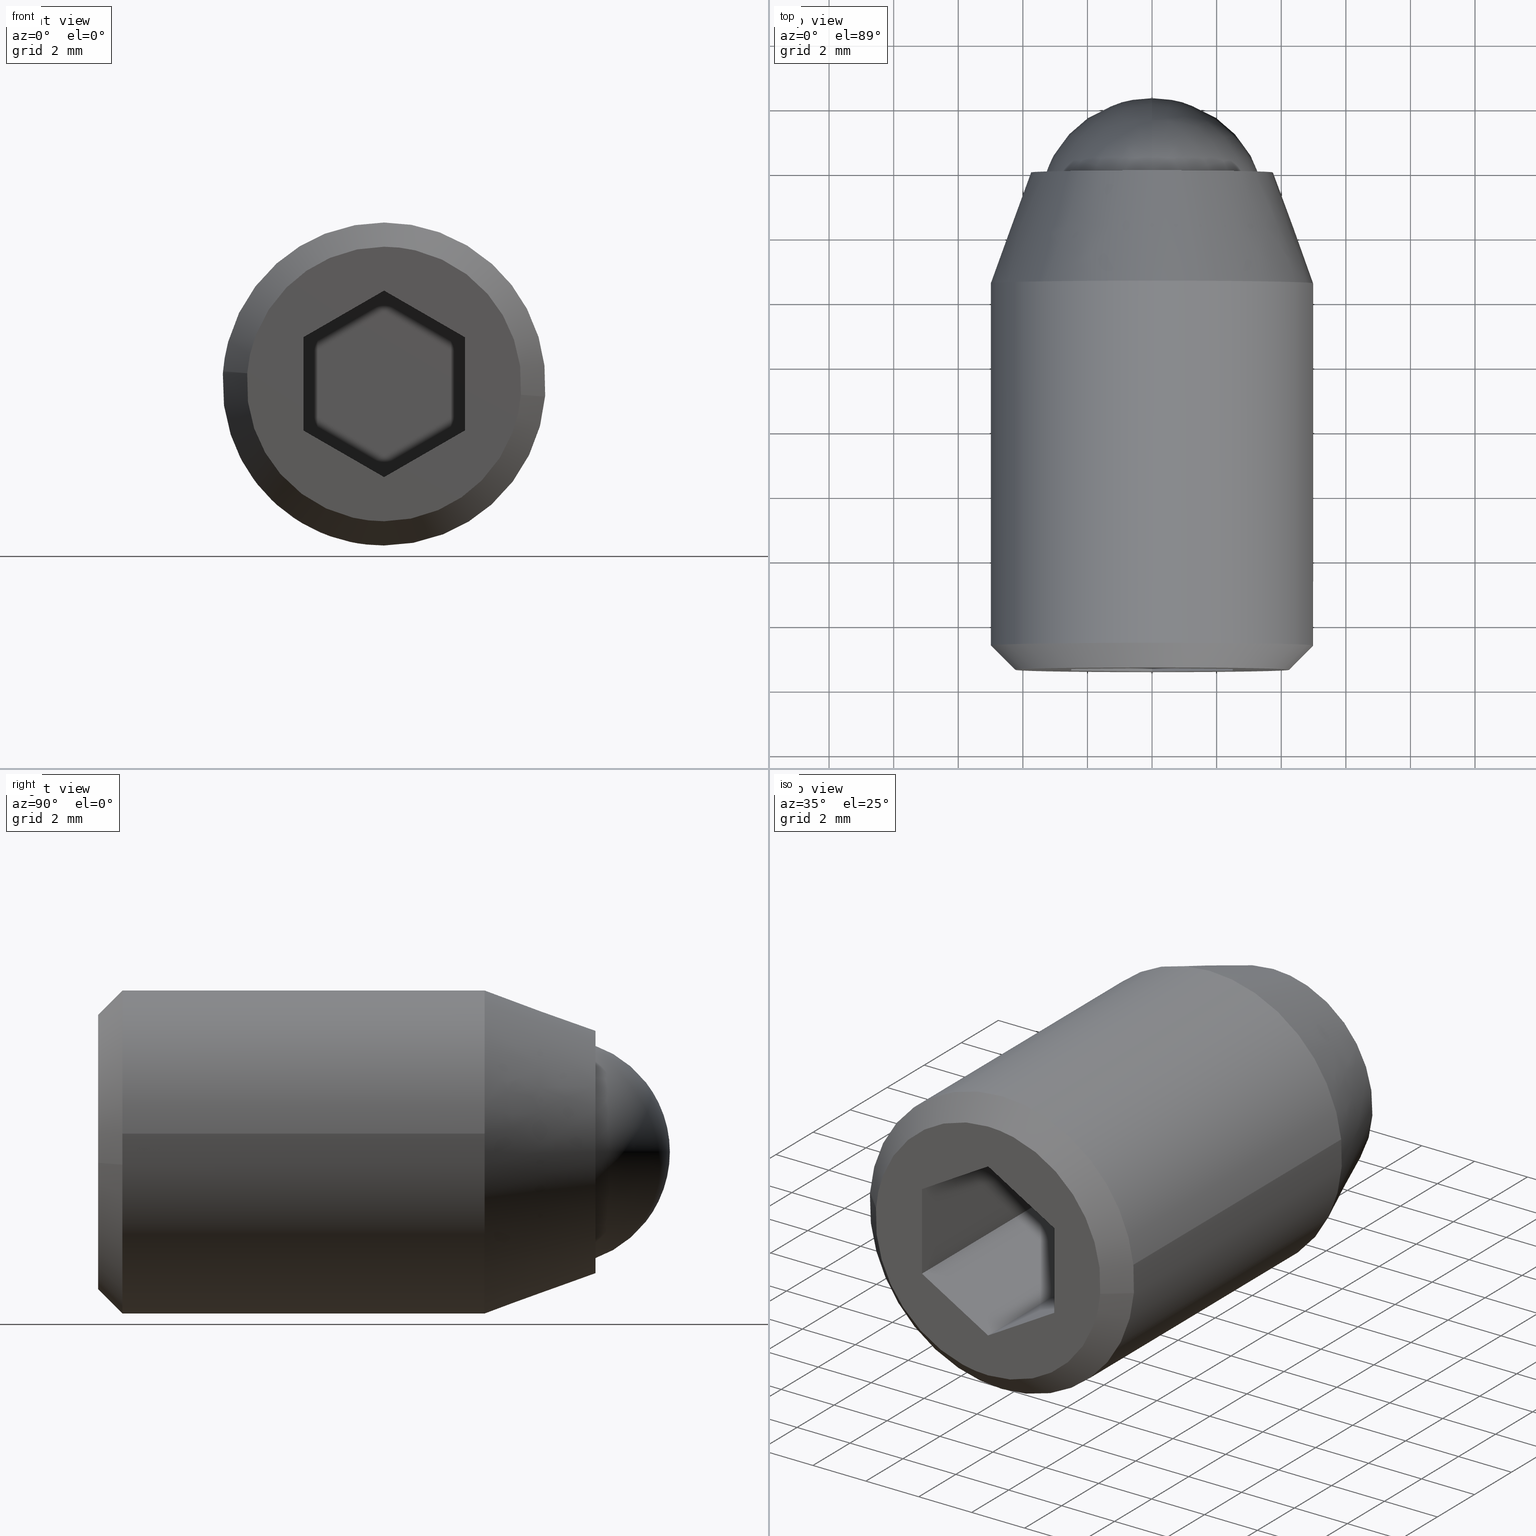
[diagram: canonical four-view strip — front | top / right | iso, engineering-drawing reading convention]
A machine part, canonical four-view strip (front | top / right | iso — engineering-drawing reading convention). The complete STEP part file that produces these views, byte-faithful:
ISO-10303-21;
HEADER;
/****************************************************************
 * Generated by software with PDE/Lib inside                    *
 * PDElib Version 4.4.1-0003, patched  Thursday August 19 11:58 *
 * International Technegroup Inc. (www.iti-oh.com)              *
 ****************************************************************/
FILE_DESCRIPTION((''),'2;1');
FILE_NAME('','2005-07-15T11:33:21',(''),(''),'','CADfix','');
FILE_SCHEMA(('AUTOMOTIVE_DESIGN'));
ENDSEC;
DATA;
#5=APPLICATION_CONTEXT('automotive design');
#6=APPLICATION_PROTOCOL_DEFINITION('Draft International Standard','automotive_design',1998,#5);
#7=PRODUCT_CONTEXT('None',#5,'mechanical');
#8=PRODUCT('body','','None',(#7));
#9=PRODUCT_RELATED_PRODUCT_CATEGORY('part','description',(#8));
#10=PRODUCT_DEFINITION_FORMATION('None','None',#8);
#11=PRODUCT_DEFINITION_CONTEXT('part definition',#5,'design');
#12=PRODUCT_DEFINITION('None','None',#10,#11);
#18=(NAMED_UNIT(*)PLANE_ANGLE_UNIT()SI_UNIT($,.RADIAN.));
#19=DIMENSIONAL_EXPONENTS(0.0,0.0,0.0,0.0,0.0,0.0,0.0);
#20=PLANE_ANGLE_MEASURE_WITH_UNIT(PLANE_ANGLE_MEASURE(0.017453292500000),#18);
#24=(CONVERSION_BASED_UNIT('DEGREE',#20)NAMED_UNIT(#19)PLANE_ANGLE_UNIT());
#28=(NAMED_UNIT(*)SI_UNIT($,.STERADIAN.)SOLID_ANGLE_UNIT());
#32=(LENGTH_UNIT()NAMED_UNIT(*)SI_UNIT(.MILLI.,.METRE.));
#34=UNCERTAINTY_MEASURE_WITH_UNIT(LENGTH_MEASURE(0.001000000000000),#32,'DISTANCE_ACCURACY_VALUE','');
#36=(GEOMETRIC_REPRESENTATION_CONTEXT(3)GLOBAL_UNCERTAINTY_ASSIGNED_CONTEXT((#34))GLOBAL_UNIT_ASSIGNED_CONTEXT((#24,#28,#32))REPRESENTATION_CONTEXT('None','None'));
#37=AXIS2_PLACEMENT_3D('',#38,#39,#40);
#38=CARTESIAN_POINT('',(0.0,0.0,0.0));
#39=DIRECTION('',(0.0,0.0,1.0));
#40=DIRECTION('',(1.0,0.0,0.0));
#41=ADVANCED_BREP_SHAPE_REPRESENTATION('',(#37,#953,#1164),#36);
#42=PRODUCT_DEFINITION_SHAPE('','',#12);
#43=SHAPE_DEFINITION_REPRESENTATION(#42,#41);
#44=CARTESIAN_POINT('',(-3.469403110029369,0.125000000000000,0.464692816491808));
#45=CARTESIAN_POINT('',(-3.472476867942809,0.125000000000000,0.438833616416023));
#46=CARTESIAN_POINT('',(-3.487356654070120,0.125000000000000,0.313651550232922));
#47=CARTESIAN_POINT('',(-3.493471794476533,0.125000000000000,0.213669888371999));
#48=CARTESIAN_POINT('',(-3.707141682848533,0.125000000000000,-3.279801906104533));
#49=CARTESIAN_POINT('',(-0.213669888371999,0.125000000000000,-3.493471794476533));
#50=CARTESIAN_POINT('',(3.279801906104533,0.125000000000000,-3.707141682848533));
#51=CARTESIAN_POINT('',(3.495008466913187,0.125000000000000,-0.188545516118633));
#52=CARTESIAN_POINT('',(3.496536011220723,0.125000000000000,-0.163570387457031));
#53=CARTESIAN_POINT('',(-3.469403110029369,-5.128125000000002,0.464692816491808));
#54=CARTESIAN_POINT('',(-3.472476867942809,-5.128125000000002,0.438833616416023));
#55=CARTESIAN_POINT('',(-3.487356654070120,-5.128125000000001,0.313651550232922));
#56=CARTESIAN_POINT('',(-3.493471794476533,-5.128125000000001,0.213669888371999));
#57=CARTESIAN_POINT('',(-3.707141682848533,-5.128125000000001,-3.279801906104533));
#58=CARTESIAN_POINT('',(-0.213669888371999,-5.128125000000001,-3.493471794476533));
#59=CARTESIAN_POINT('',(3.279801906104533,-5.128125000000001,-3.707141682848533));
#60=CARTESIAN_POINT('',(3.495008466913187,-5.128125000000002,-0.188545516118633));
#61=CARTESIAN_POINT('',(3.496536011220723,-5.128124999999999,-0.163570387457031));
#69=(BOUNDED_SURFACE()B_SPLINE_SURFACE(2,1,((#44,#53),(#45,#54),(#46,#55),(#47,#56),(#48,#57),(#49,#58),(#50,#59),(#51,#60),(#52,#61)),.UNSPECIFIED.,.F.,.F.,.U.)B_SPLINE_SURFACE_WITH_KNOTS((3,1,2,2,1,3),(2,2),(0.0,0.059143726378386,0.291103321307320,6.090093194530648,11.889083067753980,11.948239366847590),(0.0,5.253125000000003),.UNSPECIFIED.)GEOMETRIC_REPRESENTATION_ITEM()RATIONAL_B_SPLINE_SURFACE(((0.972009335711147,0.972009335711147),(0.974757568253137,0.974757568253137),(0.988284271247462,0.988284271247462),(1.0,1.0),(0.707106781186548,0.707106781186548),(1.0,1.0),(0.707106781186548,0.707106781186548),(1.002987844302785,1.002987844302785),(1.005975688605571,1.005975688605571)))REPRESENTATION_ITEM('')SURFACE());
#70=CARTESIAN_POINT('',(-3.475533965483620,-4.999999999999990,0.413114578224763));
#71=VERTEX_POINT('',#70);
#72=CARTESIAN_POINT('',(0.0,-5.0,-3.500000000000000));
#73=VERTEX_POINT('',#72);
#74=CARTESIAN_POINT('',(-3.475533965483621,-4.999999999999990,0.413114578224763));
#75=CARTESIAN_POINT('',(-3.500000000000000,-5.0,0.207281769530779));
#76=CARTESIAN_POINT('',(-3.500000000000000,-5.0,0.0));
#77=CARTESIAN_POINT('',(-3.500000000000000,-4.999999999999999,-3.500000000000000));
#78=CARTESIAN_POINT('',(0.0,-5.0,-3.500000000000000));
#86=(BOUNDED_CURVE()B_SPLINE_CURVE(2,(#74,#75,#76,#77,#78),.UNSPECIFIED.,.F.,.U.)B_SPLINE_CURVE_WITH_KNOTS((3,2,3),(0.229562728468342,0.250000000000000,0.500000000000000),.UNSPECIFIED.)CURVE()GEOMETRIC_REPRESENTATION_ITEM()RATIONAL_B_SPLINE_CURVE((0.956027253906216,0.976056247029312,1.0,0.707106781186547,1.0))REPRESENTATION_ITEM(''));
#87=EDGE_CURVE('',#71,#73,#86,.T.);
#88=ORIENTED_EDGE('',*,*,#87,.T.);
#89=CARTESIAN_POINT('',(3.493472138411033,-5.000000000000004,-0.213664264944095));
#90=VERTEX_POINT('',#89);
#91=CARTESIAN_POINT('',(0.0,-5.0,-3.500000000000000));
#92=CARTESIAN_POINT('',(3.292476543955328,-5.0,-3.499999999999999));
#93=CARTESIAN_POINT('',(3.493472138411033,-5.000000000000004,-0.213664264944096));
#101=(BOUNDED_CURVE()B_SPLINE_CURVE(2,(#91,#92,#93),.UNSPECIFIED.,.F.,.U.)B_SPLINE_CURVE_WITH_KNOTS((3,3),(0.500000000000000,0.739333239989919),.UNSPECIFIED.)CURVE()GEOMETRIC_REPRESENTATION_ITEM()RATIONAL_B_SPLINE_CURVE((1.0,0.719603667881200,0.976072636940655))REPRESENTATION_ITEM(''));
#102=EDGE_CURVE('',#73,#90,#101,.T.);
#103=ORIENTED_EDGE('',*,*,#102,.T.);
#104=CARTESIAN_POINT('',(3.493472134167185,-1.110223E-016,-0.213664334334037));
#105=VERTEX_POINT('',#104);
#106=CARTESIAN_POINT('',(3.493472134167185,-1.110223E-016,-0.213664334334037));
#107=CARTESIAN_POINT('',(3.493472138411033,-5.000000000000004,-0.213664264944095));
#108=QUASI_UNIFORM_CURVE('',1,(#106,#107),.UNSPECIFIED.,.F.,.U.);
#109=EDGE_CURVE('',#105,#90,#108,.T.);
#110=ORIENTED_EDGE('',*,*,#109,.F.);
#111=CARTESIAN_POINT('',(0.0,0.0,-3.500000000000000));
#112=VERTEX_POINT('',#111);
#113=CARTESIAN_POINT('',(0.0,0.0,-3.500000000000000));
#114=CARTESIAN_POINT('',(3.292476478435518,0.0,-3.499999999999999));
#115=CARTESIAN_POINT('',(3.493472134167185,-1.110223E-016,-0.213664334334037));
#123=(BOUNDED_CURVE()B_SPLINE_CURVE(2,(#113,#114,#115),.UNSPECIFIED.,.F.,.U.)B_SPLINE_CURVE_WITH_KNOTS((3,3),(0.500000000000000,0.739333236562665),.UNSPECIFIED.)CURVE()GEOMETRIC_REPRESENTATION_ITEM()RATIONAL_B_SPLINE_CURVE((1.0,0.719603671896478,0.976072629595379))REPRESENTATION_ITEM(''));
#124=EDGE_CURVE('',#112,#105,#123,.T.);
#125=ORIENTED_EDGE('',*,*,#124,.F.);
#126=CARTESIAN_POINT('',(-3.475533957795948,-1.135771E-016,0.413114642901986));
#127=VERTEX_POINT('',#126);
#128=CARTESIAN_POINT('',(-3.475533957795947,-1.135771E-016,0.413114642901986));
#129=CARTESIAN_POINT('',(-3.500000000000000,0.0,0.207281802211256));
#130=CARTESIAN_POINT('',(-3.500000000000000,0.0,0.0));
#131=CARTESIAN_POINT('',(-3.500000000000000,0.0,-3.500000000000000));
#132=CARTESIAN_POINT('',(0.0,0.0,-3.500000000000000));
#140=(BOUNDED_CURVE()B_SPLINE_CURVE(2,(#128,#129,#130,#131,#132),.UNSPECIFIED.,.F.,.U.)B_SPLINE_CURVE_WITH_KNOTS((3,2,3),(0.229562725323310,0.250000000000000,0.500000000000000),.UNSPECIFIED.)CURVE()GEOMETRIC_REPRESENTATION_ITEM()RATIONAL_B_SPLINE_CURVE((0.956027247741810,0.976056243344679,1.0,0.707106781186547,1.0))REPRESENTATION_ITEM(''));
#141=EDGE_CURVE('',#127,#112,#140,.T.);
#142=ORIENTED_EDGE('',*,*,#141,.F.);
#143=CARTESIAN_POINT('',(-3.475533957795948,-1.135771E-016,0.413114642901986));
#144=CARTESIAN_POINT('',(-3.475533965483620,-4.999999999999990,0.413114578224763));
#145=QUASI_UNIFORM_CURVE('',1,(#143,#144),.UNSPECIFIED.,.F.,.U.);
#146=EDGE_CURVE('',#127,#71,#145,.T.);
#147=ORIENTED_EDGE('',*,*,#146,.T.);
#148=EDGE_LOOP('',(#88,#103,#110,#125,#142,#147));
#149=FACE_OUTER_BOUND('',#148,.T.);
#150=ADVANCED_FACE('',(#149),#69,.F.);
#151=CARTESIAN_POINT('',(3.490527719925706,0.125000000000000,-0.261805081788896));
#152=CARTESIAN_POINT('',(3.491995544509195,0.125000000000000,-0.237806361984554));
#153=CARTESIAN_POINT('',(3.707141682848533,0.125000000000000,3.279801906104533));
#154=CARTESIAN_POINT('',(0.213669888371999,0.125000000000000,3.493471794476533));
#155=CARTESIAN_POINT('',(-3.085402217938253,0.125000000000000,3.695251688563845));
#156=CARTESIAN_POINT('',(-3.478454413588227,0.125000000000000,0.388545157415675));
#157=CARTESIAN_POINT('',(-3.481359785549271,0.125000000000000,0.364102570539613));
#158=CARTESIAN_POINT('',(3.490527719925706,-5.128125000000002,-0.261805081788896));
#159=CARTESIAN_POINT('',(3.491995544509195,-5.128124999999998,-0.237806361984554));
#160=CARTESIAN_POINT('',(3.707141682848533,-5.128125000000001,3.279801906104533));
#161=CARTESIAN_POINT('',(0.213669888371999,-5.128125000000001,3.493471794476533));
#162=CARTESIAN_POINT('',(-3.085402217938253,-5.128125000000000,3.695251688563845));
#163=CARTESIAN_POINT('',(-3.478454413588227,-5.128125000000002,0.388545157415675));
#164=CARTESIAN_POINT('',(-3.481359785549271,-5.128125000000003,0.364102570539613));
#172=(BOUNDED_SURFACE()B_SPLINE_SURFACE(2,1,((#151,#158),(#152,#159),(#153,#160),(#154,#161),(#155,#162),(#156,#163),(#157,#164)),.UNSPECIFIED.,.F.,.F.,.U.)B_SPLINE_SURFACE_WITH_KNOTS((3,1,2,1,3),(2,2),(0.0,0.056823578008525,5.855813451231854,11.422843729526249,11.479679873389619),(0.0,5.253125000000003),.UNSPECIFIED.)GEOMETRIC_REPRESENTATION_ITEM()RATIONAL_B_SPLINE_SURFACE(((1.005740048191587,1.005740048191587),(1.002870024095794,1.002870024095794),(0.707106781186548,0.707106781186548),(1.0,1.0),(0.718822509939086,0.718822509939086),(0.980146806861048,0.980146806861048),(0.982787812926970,0.982787812926970)))REPRESENTATION_ITEM('')SURFACE());
#173=CARTESIAN_POINT('',(0.0,-5.0,3.500000000000000));
#174=VERTEX_POINT('',#173);
#175=CARTESIAN_POINT('',(0.0,-5.0,3.500000000000000));
#176=CARTESIAN_POINT('',(-3.108615563391854,-5.0,3.500000000000000));
#177=CARTESIAN_POINT('',(-3.475533965483620,-4.999999999999990,0.413114578224763));
#185=(BOUNDED_CURVE()B_SPLINE_CURVE(2,(#175,#176,#177),.UNSPECIFIED.,.F.,.U.)B_SPLINE_CURVE_WITH_KNOTS((3,3),(0.0,0.229562728468342),.UNSPECIFIED.)CURVE()GEOMETRIC_REPRESENTATION_ITEM()RATIONAL_B_SPLINE_CURVE((1.0,0.731050534157235,0.956027253906216))REPRESENTATION_ITEM(''));
#186=EDGE_CURVE('',#174,#71,#185,.T.);
#187=ORIENTED_EDGE('',*,*,#186,.T.);
#188=ORIENTED_EDGE('',*,*,#146,.F.);
#189=CARTESIAN_POINT('',(0.0,0.0,3.500000000000000));
#190=VERTEX_POINT('',#189);
#191=CARTESIAN_POINT('',(0.0,0.0,3.500000000000000));
#192=CARTESIAN_POINT('',(-3.108615505135504,0.0,3.500000000000000));
#193=CARTESIAN_POINT('',(-3.475533957795947,-1.135771E-016,0.413114642901986));
#201=(BOUNDED_CURVE()B_SPLINE_CURVE(2,(#191,#192,#193),.UNSPECIFIED.,.F.,.U.)B_SPLINE_CURVE_WITH_KNOTS((3,3),(0.0,0.229562725323310),.UNSPECIFIED.)CURVE()GEOMETRIC_REPRESENTATION_ITEM()RATIONAL_B_SPLINE_CURVE((1.0,0.731050537841869,0.956027247741810))REPRESENTATION_ITEM(''));
#202=EDGE_CURVE('',#190,#127,#201,.T.);
#203=ORIENTED_EDGE('',*,*,#202,.F.);
#204=CARTESIAN_POINT('',(3.493472134167185,-1.110223E-016,-0.213664334334037));
#205=CARTESIAN_POINT('',(3.500000000000001,0.0,-0.106931886739928));
#206=CARTESIAN_POINT('',(3.500000000000000,0.0,0.0));
#207=CARTESIAN_POINT('',(3.500000000000000,0.0,3.500000000000000));
#208=CARTESIAN_POINT('',(0.0,0.0,3.500000000000000));
#216=(BOUNDED_CURVE()B_SPLINE_CURVE(2,(#204,#205,#206,#207,#208),.UNSPECIFIED.,.F.,.U.)B_SPLINE_CURVE_WITH_KNOTS((3,2,3),(0.739333236562665,0.750000000000000,1.0),.UNSPECIFIED.)CURVE()GEOMETRIC_REPRESENTATION_ITEM()RATIONAL_B_SPLINE_CURVE((0.976072629595379,0.987503109290069,1.0,0.707106781186547,1.0))REPRESENTATION_ITEM(''));
#217=EDGE_CURVE('',#105,#190,#216,.T.);
#218=ORIENTED_EDGE('',*,*,#217,.F.);
#219=ORIENTED_EDGE('',*,*,#109,.T.);
#220=CARTESIAN_POINT('',(3.493472138411033,-5.000000000000004,-0.213664264944096));
#221=CARTESIAN_POINT('',(3.500000000000001,-5.0,-0.106931851947684));
#222=CARTESIAN_POINT('',(3.500000000000000,-5.0,0.0));
#223=CARTESIAN_POINT('',(3.500000000000000,-4.999999999999999,3.500000000000000));
#224=CARTESIAN_POINT('',(0.0,-5.0,3.500000000000000));
#232=(BOUNDED_CURVE()B_SPLINE_CURVE(2,(#220,#221,#222,#223,#224),.UNSPECIFIED.,.F.,.U.)B_SPLINE_CURVE_WITH_KNOTS((3,2,3),(0.739333239989919,0.750000000000000,1.0),.UNSPECIFIED.)CURVE()GEOMETRIC_REPRESENTATION_ITEM()RATIONAL_B_SPLINE_CURVE((0.976072636940655,0.987503113305347,1.0,0.707106781186547,1.0))REPRESENTATION_ITEM(''));
#233=EDGE_CURVE('',#90,#174,#232,.T.);
#234=ORIENTED_EDGE('',*,*,#233,.T.);
#235=EDGE_LOOP('',(#187,#188,#203,#218,#219,#234));
#236=FACE_OUTER_BOUND('',#235,.T.);
#237=ADVANCED_FACE('',(#236),#172,.F.);
#238=CARTESIAN_POINT('',(-3.015807974484926,0.085858675000000,-2.175776602395827));
#239=CARTESIAN_POINT('',(-1.985204626224891,0.085858675000000,-3.604278863515390));
#240=CARTESIAN_POINT('',(-0.227024256395250,0.085858675000000,-3.711813781631319));
#241=CARTESIAN_POINT('',(3.484789525236069,0.085858675000000,-3.938838038026567));
#242=CARTESIAN_POINT('',(3.711813781631318,0.085858675000000,-0.227024256395250));
#243=CARTESIAN_POINT('',(3.938838038026567,0.085858675000000,3.484789525236068));
#244=CARTESIAN_POINT('',(0.227024256395250,0.085858675000000,3.711813781631317));
#245=CARTESIAN_POINT('',(-3.484789525236069,0.085858675000000,3.938838038026567));
#246=CARTESIAN_POINT('',(-3.711813781631318,0.085858675000000,0.227024256395249));
#247=CARTESIAN_POINT('',(-4.080844362112899,-3.522352141875000,-2.944154852107463));
#248=CARTESIAN_POINT('',(-2.686282142334985,-3.522352141875000,-4.877134487374501));
#249=CARTESIAN_POINT('',(-0.307198158706261,-3.522352141875000,-5.022645497371284));
#250=CARTESIAN_POINT('',(4.715447338665022,-3.522352141875000,-5.329843656077545));
#251=CARTESIAN_POINT('',(5.022645497371284,-3.522352141875000,-0.307198158706262));
#252=CARTESIAN_POINT('',(5.329843656077545,-3.522352141875000,4.715447338665022));
#253=CARTESIAN_POINT('',(0.307198158706261,-3.522352141875000,5.022645497371283));
#254=CARTESIAN_POINT('',(-4.715447338665022,-3.522352141875000,5.329843656077543));
#255=CARTESIAN_POINT('',(-5.022645497371284,-3.522352141875000,0.307198158706260));
#263=(BOUNDED_SURFACE()B_SPLINE_SURFACE(2,1,((#238,#247),(#239,#248),(#240,#249),(#241,#250),(#242,#251),(#243,#252),(#244,#253),(#245,#254),(#246,#255)),.UNSPECIFIED.,.F.,.F.,.U.)B_SPLINE_SURFACE_WITH_KNOTS((3,2,2,2,3),(2,2),(0.0,4.668911721678933,13.006254081819881,21.343596441960841,29.680938802101789),(0.0,3.839777720209247),.UNSPECIFIED.)GEOMETRIC_REPRESENTATION_ITEM()RATIONAL_B_SPLINE_SURFACE(((0.855662221768731,0.855662221768731),(0.835979797464467,0.835979797464467),(1.0,1.0),(0.707106781186548,0.707106781186548),(1.0,1.0),(0.707106781186548,0.707106781186548),(1.0,1.0),(0.707106781186548,0.707106781186548),(1.0,1.0)))REPRESENTATION_ITEM('')SURFACE());
#264=CARTESIAN_POINT('',(-3.041150897749457,6.026009E-009,-2.194060436876802));
#265=VERTEX_POINT('',#264);
#266=CARTESIAN_POINT('',(0.0,0.0,-3.750000000000001));
#267=VERTEX_POINT('',#266);
#268=CARTESIAN_POINT('',(-3.041150897749456,6.026009E-009,-2.194060436876802));
#269=CARTESIAN_POINT('',(-1.918606985505606,0.0,-3.750000000000001));
#270=CARTESIAN_POINT('',(0.0,0.0,-3.750000000000001));
#278=(BOUNDED_CURVE()B_SPLINE_CURVE(2,(#268,#269,#270),.UNSPECIFIED.,.F.,.U.)B_SPLINE_CURVE_WITH_KNOTS((3,3),(0.850743050259086,1.0),.UNSPECIFIED.)CURVE()GEOMETRIC_REPRESENTATION_ITEM()RATIONAL_B_SPLINE_CURVE((0.859068214783233,0.825134606240424,1.0))REPRESENTATION_ITEM(''));
#279=EDGE_CURVE('',#265,#267,#278,.T.);
#280=ORIENTED_EDGE('',*,*,#279,.T.);
#281=CARTESIAN_POINT('',(0.0,0.0,3.749999999999999));
#282=VERTEX_POINT('',#281);
#283=CARTESIAN_POINT('',(0.0,0.0,-3.750000000000001));
#284=CARTESIAN_POINT('',(3.750000000000000,0.0,-3.750000000000002));
#285=CARTESIAN_POINT('',(3.750000000000000,0.0,-7.898711E-016));
#286=CARTESIAN_POINT('',(3.750000000000000,0.0,3.749999999999999));
#287=CARTESIAN_POINT('',(0.0,0.0,3.749999999999999));
#295=(BOUNDED_CURVE()B_SPLINE_CURVE(2,(#283,#284,#285,#286,#287),.UNSPECIFIED.,.F.,.U.)B_SPLINE_CURVE_WITH_KNOTS((3,2,3),(0.0,0.250000000000000,0.500000000000000),.UNSPECIFIED.)CURVE()GEOMETRIC_REPRESENTATION_ITEM()RATIONAL_B_SPLINE_CURVE((1.0,0.707106781186547,1.0,0.707106781186547,1.0))REPRESENTATION_ITEM(''));
#296=EDGE_CURVE('',#267,#282,#295,.T.);
#297=ORIENTED_EDGE('',*,*,#296,.T.);
#298=CARTESIAN_POINT('',(-3.743005494082037,-1.182228E-012,0.228932023262176));
#299=VERTEX_POINT('',#298);
#300=CARTESIAN_POINT('',(0.0,0.0,3.749999999999999));
#301=CARTESIAN_POINT('',(-3.527647750884189,0.0,3.749999999999999));
#302=CARTESIAN_POINT('',(-3.743005494082037,-1.182228E-012,0.228932023262176));
#310=(BOUNDED_CURVE()B_SPLINE_CURVE(2,(#300,#301,#302),.UNSPECIFIED.,.F.,.U.)B_SPLINE_CURVE_WITH_KNOTS((3,3),(0.500000000000000,0.739332962241374),.UNSPECIFIED.)CURVE()GEOMETRIC_REPRESENTATION_ITEM()RATIONAL_B_SPLINE_CURVE((1.0,0.719603993283862,0.976072041671929))REPRESENTATION_ITEM(''));
#311=EDGE_CURVE('',#282,#299,#310,.T.);
#312=ORIENTED_EDGE('',*,*,#311,.T.);
#313=CARTESIAN_POINT('',(-4.990674008447604,-3.434346999703066,0.305242428775148));
#314=VERTEX_POINT('',#313);
#315=CARTESIAN_POINT('',(-3.743005494082037,-1.182228E-012,0.228932023262176));
#316=CARTESIAN_POINT('',(-4.990674008447604,-3.434346999703066,0.305242428775148));
#317=QUASI_UNIFORM_CURVE('',1,(#315,#316),.UNSPECIFIED.,.F.,.U.);
#318=EDGE_CURVE('',#299,#314,#317,.T.);
#319=ORIENTED_EDGE('',*,*,#318,.T.);
#320=CARTESIAN_POINT('',(0.0,-3.434347000000000,4.999999999999999));
#321=VERTEX_POINT('',#320);
#322=CARTESIAN_POINT('',(0.0,-3.434347000000000,4.999999999999999));
#323=CARTESIAN_POINT('',(-4.703531350108926,-3.434346999999999,4.999999999999999));
#324=CARTESIAN_POINT('',(-4.990674008447605,-3.434346999703066,0.305242428775147));
#332=(BOUNDED_CURVE()B_SPLINE_CURVE(2,(#322,#323,#324),.UNSPECIFIED.,.F.,.U.)B_SPLINE_CURVE_WITH_KNOTS((3,3),(0.500000000000000,0.739332999428565),.UNSPECIFIED.)CURVE()GEOMETRIC_REPRESENTATION_ITEM()RATIONAL_B_SPLINE_CURVE((1.0,0.719603949716357,0.976072121371171))REPRESENTATION_ITEM(''));
#333=EDGE_CURVE('',#321,#314,#332,.T.);
#334=ORIENTED_EDGE('',*,*,#333,.F.);
#335=CARTESIAN_POINT('',(4.967346556060868,-3.434347000000000,0.570498196284262));
#336=VERTEX_POINT('',#335);
#337=CARTESIAN_POINT('',(4.967346556060868,-3.434347000000000,0.570498196284262));
#338=CARTESIAN_POINT('',(4.458619661143284,-3.434346999999999,4.999999999999999));
#339=CARTESIAN_POINT('',(0.0,-3.434347000000000,4.999999999999999));
#347=(BOUNDED_CURVE()B_SPLINE_CURVE(2,(#337,#338,#339),.UNSPECIFIED.,.F.,.U.)B_SPLINE_CURVE_WITH_KNOTS((3,3),(0.269767581186944,0.500000000000000),.UNSPECIFIED.)CURVE()GEOMETRIC_REPRESENTATION_ITEM()RATIONAL_B_SPLINE_CURVE((0.957344081053065,0.730265943114548,1.0))REPRESENTATION_ITEM(''));
#348=EDGE_CURVE('',#336,#321,#347,.T.);
#349=ORIENTED_EDGE('',*,*,#348,.F.);
#350=CARTESIAN_POINT('',(0.0,-3.434347000000000,-5.000000000000001));
#351=VERTEX_POINT('',#350);
#352=CARTESIAN_POINT('',(0.0,-3.434347000000000,-5.000000000000001));
#353=CARTESIAN_POINT('',(5.000000000000001,-3.434347000000000,-5.000000000000002));
#354=CARTESIAN_POINT('',(5.0,-3.434347000000000,-7.898711E-016));
#355=CARTESIAN_POINT('',(4.999999999999999,-3.434346999999999,0.286183586110744));
#356=CARTESIAN_POINT('',(4.967346556060868,-3.434347000000000,0.570498196284262));
#364=(BOUNDED_CURVE()B_SPLINE_CURVE(2,(#352,#353,#354,#355,#356),.UNSPECIFIED.,.F.,.U.)B_SPLINE_CURVE_WITH_KNOTS((3,2,3),(0.0,0.250000000000000,0.269767581186944),.UNSPECIFIED.)CURVE()GEOMETRIC_REPRESENTATION_ITEM()RATIONAL_B_SPLINE_CURVE((1.0,0.707106781186548,1.0,0.976840838071999,0.957344081053065))REPRESENTATION_ITEM(''));
#365=EDGE_CURVE('',#351,#336,#364,.T.);
#366=ORIENTED_EDGE('',*,*,#365,.F.);
#367=CARTESIAN_POINT('',(-4.054867864853314,-3.434347000000068,-2.925413919188217));
#368=VERTEX_POINT('',#367);
#369=CARTESIAN_POINT('',(-4.054867864853314,-3.434347000000068,-2.925413919188217));
#370=CARTESIAN_POINT('',(-2.558142644786920,-3.434347000000000,-5.000000000000001));
#371=CARTESIAN_POINT('',(0.0,-3.434347000000000,-5.000000000000001));
#379=(BOUNDED_CURVE()B_SPLINE_CURVE(2,(#369,#370,#371),.UNSPECIFIED.,.F.,.U.)B_SPLINE_CURVE_WITH_KNOTS((3,3),(0.850743050382039,1.0),.UNSPECIFIED.)CURVE()GEOMETRIC_REPRESENTATION_ITEM()RATIONAL_B_SPLINE_CURVE((0.859068214727327,0.825134606384472,1.0))REPRESENTATION_ITEM(''));
#380=EDGE_CURVE('',#368,#351,#379,.T.);
#381=ORIENTED_EDGE('',*,*,#380,.F.);
#382=CARTESIAN_POINT('',(-3.041150897749457,6.026009E-009,-2.194060436876802));
#383=CARTESIAN_POINT('',(-4.054867864853314,-3.434347000000068,-2.925413919188217));
#384=QUASI_UNIFORM_CURVE('',1,(#382,#383),.UNSPECIFIED.,.F.,.U.);
#385=EDGE_CURVE('',#265,#368,#384,.T.);
#386=ORIENTED_EDGE('',*,*,#385,.F.);
#387=EDGE_LOOP('',(#280,#297,#312,#319,#334,#349,#366,#381,#386));
#388=FACE_OUTER_BOUND('',#387,.T.);
#389=ADVANCED_FACE('',(#388),#263,.T.);
#390=CARTESIAN_POINT('',(-3.711813781631318,0.085858675000000,0.227024256395249));
#391=CARTESIAN_POINT('',(-3.792896532417209,0.085858675000000,-1.098667000558672));
#392=CARTESIAN_POINT('',(-3.015807974484926,0.085858675000000,-2.175776602395827));
#393=CARTESIAN_POINT('',(-5.022645497371284,-3.522352141875000,0.307198158706260));
#394=CARTESIAN_POINT('',(-5.132362723802361,-3.522352141875001,-1.486662636680336));
#395=CARTESIAN_POINT('',(-4.080844362112899,-3.522352141875000,-2.944154852107463));
#403=(BOUNDED_SURFACE()B_SPLINE_SURFACE(2,1,((#390,#393),(#391,#394),(#392,#395)),.UNSPECIFIED.,.F.,.F.,.U.)B_SPLINE_SURFACE_WITH_KNOTS((3,3),(2,2),(0.0,3.659389569803642),(0.0,3.839777720209246),.UNSPECIFIED.)GEOMETRIC_REPRESENTATION_ITEM()RATIONAL_B_SPLINE_SURFACE(((1.0,1.0),(0.871126983722081,0.871126983722081),(0.855662221768731,0.855662221768731)))REPRESENTATION_ITEM('')SURFACE());
#404=CARTESIAN_POINT('',(-3.743005494082037,-1.182228E-012,0.228932023262176));
#405=CARTESIAN_POINT('',(-3.750000000000000,0.0,0.114572862376163));
#406=CARTESIAN_POINT('',(-3.750000000000000,0.0,-7.898711E-016));
#407=CARTESIAN_POINT('',(-3.749999999999999,0.0,-1.211536418367770));
#408=CARTESIAN_POINT('',(-3.041150897749456,6.026009E-009,-2.194060436876802));
#416=(BOUNDED_CURVE()B_SPLINE_CURVE(2,(#404,#405,#406,#407,#408),.UNSPECIFIED.,.F.,.U.)B_SPLINE_CURVE_WITH_KNOTS((3,2,3),(0.739332962241375,0.750000000000000,0.850743050259086),.UNSPECIFIED.)CURVE()GEOMETRIC_REPRESENTATION_ITEM()RATIONAL_B_SPLINE_CURVE((0.976072041671930,0.987502787902687,1.0,0.881972174946123,0.859068214783233))REPRESENTATION_ITEM(''));
#417=EDGE_CURVE('',#299,#265,#416,.T.);
#418=ORIENTED_EDGE('',*,*,#417,.T.);
#419=ORIENTED_EDGE('',*,*,#385,.T.);
#420=CARTESIAN_POINT('',(-4.990674008447604,-3.434346999703067,0.305242428775147));
#421=CARTESIAN_POINT('',(-5.0,-3.434346999999999,0.152763277199975));
#422=CARTESIAN_POINT('',(-5.0,-3.434347000000000,-7.898711E-016));
#423=CARTESIAN_POINT('',(-5.0,-3.434347000000000,-1.615381893392360));
#424=CARTESIAN_POINT('',(-4.054867864853314,-3.434347000000068,-2.925413919188217));
#432=(BOUNDED_CURVE()B_SPLINE_CURVE(2,(#420,#421,#422,#423,#424),.UNSPECIFIED.,.F.,.U.)B_SPLINE_CURVE_WITH_KNOTS((3,2,3),(0.739332999428566,0.750000000000000,0.850743050382039),.UNSPECIFIED.)CURVE()GEOMETRIC_REPRESENTATION_ITEM()RATIONAL_B_SPLINE_CURVE((0.976072121371171,0.987502831470191,1.0,0.881972174802075,0.859068214727327))REPRESENTATION_ITEM(''));
#433=EDGE_CURVE('',#314,#368,#432,.T.);
#434=ORIENTED_EDGE('',*,*,#433,.F.);
#435=ORIENTED_EDGE('',*,*,#318,.F.);
#436=EDGE_LOOP('',(#418,#419,#434,#435));
#437=FACE_OUTER_BOUND('',#436,.T.);
#438=ADVANCED_FACE('',(#437),#403,.T.);
#439=CARTESIAN_POINT('',(4.967345967178567,-3.153955675000000,0.570503323701801));
#440=CARTESIAN_POINT('',(4.489075762930407,-3.153955674999999,4.734779799566036));
#441=CARTESIAN_POINT('',(0.305242697674285,-3.153955674999999,4.990673992109333));
#442=CARTESIAN_POINT('',(-4.685431294435048,-3.153955674999999,5.295916689783618));
#443=CARTESIAN_POINT('',(-4.990673992109334,-3.153955674999999,0.305242697674284));
#444=CARTESIAN_POINT('',(4.967345967178567,-14.937401108124998,0.570503323701801));
#445=CARTESIAN_POINT('',(4.489075762930407,-14.937401108124998,4.734779799566036));
#446=CARTESIAN_POINT('',(0.305242697674285,-14.937401108125000,4.990673992109333));
#447=CARTESIAN_POINT('',(-4.685431294435048,-14.937401108125004,5.295916689783618));
#448=CARTESIAN_POINT('',(-4.990673992109334,-14.937401108125000,0.305242697674284));
#456=(BOUNDED_SURFACE()B_SPLINE_SURFACE(2,1,((#439,#444),(#440,#445),(#441,#446),(#442,#447),(#443,#448)),.UNSPECIFIED.,.F.,.F.,.U.)B_SPLINE_SURFACE_WITH_KNOTS((3,2,3),(2,2),(0.0,7.290158697766469,15.574429945228371),(0.0,11.783445433124999),.UNSPECIFIED.)GEOMETRIC_REPRESENTATION_ITEM()RATIONAL_B_SPLINE_SURFACE(((0.938140952186599,0.938140952186599),(0.742253967444162,0.742253967444162),(1.0,1.0),(0.707106781186548,0.707106781186548),(1.0,1.0)))REPRESENTATION_ITEM('')SURFACE());
#457=CARTESIAN_POINT('',(4.967346085301280,-14.650000000000000,0.570502295210953));
#458=VERTEX_POINT('',#457);
#459=CARTESIAN_POINT('',(0.0,-14.650000000000000,4.999999999999999));
#460=VERTEX_POINT('',#459);
#461=CARTESIAN_POINT('',(4.967346085301280,-14.649999999999997,0.570502295210953));
#462=CARTESIAN_POINT('',(4.458615957821147,-14.649999999999991,4.999999999999998));
#463=CARTESIAN_POINT('',(0.0,-14.650000000000000,4.999999999999999));
#471=(BOUNDED_CURVE()B_SPLINE_CURVE(2,(#461,#462,#463),.UNSPECIFIED.,.F.,.U.)B_SPLINE_CURVE_WITH_KNOTS((3,3),(0.269767720836219,0.500000000000000),.UNSPECIFIED.)CURVE()GEOMETRIC_REPRESENTATION_ITEM()RATIONAL_B_SPLINE_CURVE((0.957343805581206,0.730266106723851,1.0))REPRESENTATION_ITEM(''));
#472=EDGE_CURVE('',#458,#460,#471,.T.);
#473=ORIENTED_EDGE('',*,*,#472,.F.);
#474=CARTESIAN_POINT('',(4.967346556060868,-3.434347000000000,0.570498196284262));
#475=CARTESIAN_POINT('',(4.967346085301280,-14.650000000000000,0.570502295210953));
#476=QUASI_UNIFORM_CURVE('',1,(#474,#475),.UNSPECIFIED.,.F.,.U.);
#477=EDGE_CURVE('',#336,#458,#476,.T.);
#478=ORIENTED_EDGE('',*,*,#477,.F.);
#479=ORIENTED_EDGE('',*,*,#348,.T.);
#480=ORIENTED_EDGE('',*,*,#333,.T.);
#481=CARTESIAN_POINT('',(-4.990674017692891,-14.650000000000000,0.305242279386241));
#482=VERTEX_POINT('',#481);
#483=CARTESIAN_POINT('',(-4.990674008447604,-3.434346999703066,0.305242428775148));
#484=CARTESIAN_POINT('',(-4.990674017692891,-14.650000000000000,0.305242279386241));
#485=QUASI_UNIFORM_CURVE('',1,(#483,#484),.UNSPECIFIED.,.F.,.U.);
#486=EDGE_CURVE('',#314,#482,#485,.T.);
#487=ORIENTED_EDGE('',*,*,#486,.T.);
#488=CARTESIAN_POINT('',(-4.984586668666798,-14.649999999997091,0.392295478661580));
#489=VERTEX_POINT('',#488);
#490=CARTESIAN_POINT('',(-4.984586668666798,-14.649999999997096,0.392295478661580));
#491=CARTESIAN_POINT('',(-4.988010212323616,-14.649999999999999,0.348795232002694));
#492=CARTESIAN_POINT('',(-4.990674017692892,-14.650000000000000,0.305242279386241));
#500=(BOUNDED_CURVE()B_SPLINE_CURVE(2,(#490,#491,#492),.UNSPECIFIED.,.F.,.U.)B_SPLINE_CURVE_WITH_KNOTS((3,3),(0.736331300631245,0.739332991165622),.UNSPECIFIED.)CURVE()GEOMETRIC_REPRESENTATION_ITEM()RATIONAL_B_SPLINE_CURVE((0.969723356168639,0.972855505744448,0.976072103662104))REPRESENTATION_ITEM(''));
#501=EDGE_CURVE('',#489,#482,#500,.T.);
#502=ORIENTED_EDGE('',*,*,#501,.F.);
#503=CARTESIAN_POINT('',(0.0,-14.650000000000000,4.999999999999999));
#504=CARTESIAN_POINT('',(-4.621952458249877,-14.649999999999997,4.999999999999999));
#505=CARTESIAN_POINT('',(-4.984586668666798,-14.649999999997092,0.392295478661580));
#513=(BOUNDED_CURVE()B_SPLINE_CURVE(2,(#503,#504,#505),.UNSPECIFIED.,.F.,.U.)B_SPLINE_CURVE_WITH_KNOTS((3,3),(0.500000000000000,0.736331300631245),.UNSPECIFIED.)CURVE()GEOMETRIC_REPRESENTATION_ITEM()RATIONAL_B_SPLINE_CURVE((1.0,0.723120658606980,0.969723356168640))REPRESENTATION_ITEM(''));
#514=EDGE_CURVE('',#460,#489,#513,.T.);
#515=ORIENTED_EDGE('',*,*,#514,.F.);
#516=EDGE_LOOP('',(#473,#478,#479,#480,#487,#502,#515));
#517=FACE_OUTER_BOUND('',#516,.T.);
#518=ADVANCED_FACE('',(#517),#456,.T.);
#519=CARTESIAN_POINT('',(-4.990673992109334,-3.153955674999999,0.305242697674284));
#520=CARTESIAN_POINT('',(-5.295916689783620,-3.153955674999999,-4.685431294435050));
#521=CARTESIAN_POINT('',(-0.305242697674285,-3.153955674999999,-4.990673992109334));
#522=CARTESIAN_POINT('',(4.685431294435048,-3.153955674999999,-5.295916689783620));
#523=CARTESIAN_POINT('',(4.990673992109334,-3.153955674999999,-0.305242697674286));
#524=CARTESIAN_POINT('',(5.017518191973888,-3.153955674999999,0.133656090482733));
#525=CARTESIAN_POINT('',(4.967345967178567,-3.153955675000000,0.570503323701801));
#526=CARTESIAN_POINT('',(-4.990673992109334,-14.937401108125000,0.305242697674284));
#527=CARTESIAN_POINT('',(-5.295916689783620,-14.937401108125004,-4.685431294435050));
#528=CARTESIAN_POINT('',(-0.305242697674285,-14.937401108125000,-4.990673992109334));
#529=CARTESIAN_POINT('',(4.685431294435048,-14.937401108125004,-5.295916689783620));
#530=CARTESIAN_POINT('',(4.990673992109334,-14.937401108125000,-0.305242697674286));
#531=CARTESIAN_POINT('',(5.017518191973888,-14.937401108125005,0.133656090482733));
#532=CARTESIAN_POINT('',(4.967345967178567,-14.937401108124998,0.570503323701801));
#540=(BOUNDED_SURFACE()B_SPLINE_SURFACE(2,1,((#519,#526),(#520,#527),(#521,#528),(#522,#529),(#523,#530),(#524,#531),(#525,#532)),.UNSPECIFIED.,.F.,.F.,.U.)B_SPLINE_SURFACE_WITH_KNOTS((3,2,2,3),(2,2),(0.0,8.284271247461899,16.568542494923800,17.562655044619230),(0.0,11.783445433124999),.UNSPECIFIED.)GEOMETRIC_REPRESENTATION_ITEM()RATIONAL_B_SPLINE_SURFACE(((1.0,1.0),(0.707106781186548,0.707106781186548),(1.0,1.0),(0.707106781186548,0.707106781186548),(1.0,1.0),(0.964852813742386,0.964852813742386),(0.938140952186599,0.938140952186599)))REPRESENTATION_ITEM('')SURFACE());
#541=CARTESIAN_POINT('',(4.984586668666797,-14.649999999997091,-0.392295478661581));
#542=VERTEX_POINT('',#541);
#543=CARTESIAN_POINT('',(4.984586668666798,-14.649999999997096,-0.392295478661581));
#544=CARTESIAN_POINT('',(5.0,-14.650000000000004,-0.196450535060578));
#545=CARTESIAN_POINT('',(5.0,-14.650000000000000,-7.898711E-016));
#546=CARTESIAN_POINT('',(4.999999999999999,-14.650000000000002,0.286185655804744));
#547=CARTESIAN_POINT('',(4.967346085301280,-14.649999999999997,0.570502295210953));
#555=(BOUNDED_CURVE()B_SPLINE_CURVE(2,(#543,#544,#545,#546,#547),.UNSPECIFIED.,.F.,.U.)B_SPLINE_CURVE_WITH_KNOTS((3,2,3),(0.236331300631245,0.250000000000000,0.269767720836219),.UNSPECIFIED.)CURVE()GEOMETRIC_REPRESENTATION_ITEM()RATIONAL_B_SPLINE_CURVE((0.969723356168639,0.983986122579568,1.0,0.976840674462697,0.957343805581206))REPRESENTATION_ITEM(''));
#556=EDGE_CURVE('',#542,#458,#555,.T.);
#557=ORIENTED_EDGE('',*,*,#556,.F.);
#558=CARTESIAN_POINT('',(0.0,-14.650000000000000,-5.000000000000001));
#559=VERTEX_POINT('',#558);
#560=CARTESIAN_POINT('',(0.0,-14.650000000000000,-5.000000000000001));
#561=CARTESIAN_POINT('',(4.621952458249877,-14.649999999999997,-5.000000000000001));
#562=CARTESIAN_POINT('',(4.984586668666797,-14.649999999997092,-0.392295478661581));
#570=(BOUNDED_CURVE()B_SPLINE_CURVE(2,(#560,#561,#562),.UNSPECIFIED.,.F.,.U.)B_SPLINE_CURVE_WITH_KNOTS((3,3),(0.0,0.236331300631245),.UNSPECIFIED.)CURVE()GEOMETRIC_REPRESENTATION_ITEM()RATIONAL_B_SPLINE_CURVE((1.0,0.723120658606980,0.969723356168640))REPRESENTATION_ITEM(''));
#571=EDGE_CURVE('',#559,#542,#570,.T.);
#572=ORIENTED_EDGE('',*,*,#571,.F.);
#573=CARTESIAN_POINT('',(-4.990674017692891,-14.650000000000006,0.305242279386241));
#574=CARTESIAN_POINT('',(-5.000000000000001,-14.649999999999999,0.152763397032065));
#575=CARTESIAN_POINT('',(-5.0,-14.650000000000000,-7.898711E-016));
#576=CARTESIAN_POINT('',(-5.000000000000001,-14.649999999999999,-5.000000000000002));
#577=CARTESIAN_POINT('',(0.0,-14.650000000000000,-5.000000000000001));
#585=(BOUNDED_CURVE()B_SPLINE_CURVE(2,(#573,#574,#575,#576,#577),.UNSPECIFIED.,.F.,.U.)B_SPLINE_CURVE_WITH_KNOTS((3,2,3),(0.739332991165621,0.750000000000000,1.0),.UNSPECIFIED.)CURVE()GEOMETRIC_REPRESENTATION_ITEM()RATIONAL_B_SPLINE_CURVE((0.976072103662103,0.987502821789549,1.0,0.707106781186548,1.0))REPRESENTATION_ITEM(''));
#586=EDGE_CURVE('',#482,#559,#585,.T.);
#587=ORIENTED_EDGE('',*,*,#586,.F.);
#588=ORIENTED_EDGE('',*,*,#486,.F.);
#589=ORIENTED_EDGE('',*,*,#433,.T.);
#590=ORIENTED_EDGE('',*,*,#380,.T.);
#591=ORIENTED_EDGE('',*,*,#365,.T.);
#592=ORIENTED_EDGE('',*,*,#477,.T.);
#593=EDGE_LOOP('',(#557,#572,#587,#588,#589,#590,#591,#592));
#594=FACE_OUTER_BOUND('',#593,.T.);
#595=ADVANCED_FACE('',(#594),#540,.T.);
#596=CARTESIAN_POINT('',(4.218206468358297,-15.418749999999999,-0.331980048798447));
#597=CARTESIAN_POINT('',(3.886226419559850,-15.418749999999998,-4.550186517156744));
#598=CARTESIAN_POINT('',(-0.331980048798447,-15.418749999999999,-4.218206468358297));
#599=CARTESIAN_POINT('',(-4.550186517156743,-15.418749999999998,-3.886226419559850));
#600=CARTESIAN_POINT('',(-4.218206468358297,-15.418749999999999,0.331980048798446));
#601=CARTESIAN_POINT('',(5.003746173673324,-14.630781250000000,-0.393803364385248));
#602=CARTESIAN_POINT('',(4.609942809288076,-14.630781249999997,-5.397549538058573));
#603=CARTESIAN_POINT('',(-0.393803364385247,-14.630781250000000,-5.003746173673325));
#604=CARTESIAN_POINT('',(-5.397549538058571,-14.630781249999997,-4.609942809288078));
#605=CARTESIAN_POINT('',(-5.003746173673324,-14.630781250000000,0.393803364385247));
#613=(BOUNDED_SURFACE()B_SPLINE_SURFACE(2,1,((#596,#601),(#597,#602),(#598,#603),(#599,#604),(#600,#605)),.UNSPECIFIED.,.F.,.F.,.U.)B_SPLINE_SURFACE_WITH_KNOTS((3,2,3),(2,2),(0.0,8.316113915069336,16.632227830138671),(0.0,1.0),.UNSPECIFIED.)GEOMETRIC_REPRESENTATION_ITEM()RATIONAL_B_SPLINE_SURFACE(((1.0,1.0),(0.707106781186548,0.707106781186548),(1.0,1.0),(0.707106781186548,0.707106781186548),(1.0,1.0)))REPRESENTATION_ITEM('')SURFACE());
#614=ORIENTED_EDGE('',*,*,#571,.T.);
#615=CARTESIAN_POINT('',(4.236898668366878,-15.399999999997281,-0.333451156864203));
#616=VERTEX_POINT('',#615);
#617=CARTESIAN_POINT('',(4.236898668366878,-15.399999999997281,-0.333451156864203));
#618=CARTESIAN_POINT('',(4.984586668666797,-14.649999999997091,-0.392295478661581));
#619=QUASI_UNIFORM_CURVE('',1,(#617,#618),.UNSPECIFIED.,.F.,.U.);
#620=EDGE_CURVE('',#616,#542,#619,.T.);
#621=ORIENTED_EDGE('',*,*,#620,.F.);
#622=CARTESIAN_POINT('',(0.0,-15.400000000000000,-4.250000000000001));
#623=VERTEX_POINT('',#622);
#624=CARTESIAN_POINT('',(0.0,-15.400000000000000,-4.250000000000001));
#625=CARTESIAN_POINT('',(3.928659589508974,-15.400000000000009,-4.250000000000001));
#626=CARTESIAN_POINT('',(4.236898668366879,-15.399999999997283,-0.333451156864203));
#634=(BOUNDED_CURVE()B_SPLINE_CURVE(2,(#624,#625,#626),.UNSPECIFIED.,.F.,.U.)B_SPLINE_CURVE_WITH_KNOTS((3,3),(0.0,0.236331300631096),.UNSPECIFIED.)CURVE()GEOMETRIC_REPRESENTATION_ITEM()RATIONAL_B_SPLINE_CURVE((1.0,0.723120658607154,0.969723356168329))REPRESENTATION_ITEM(''));
#635=EDGE_CURVE('',#623,#616,#634,.T.);
#636=ORIENTED_EDGE('',*,*,#635,.F.);
#637=CARTESIAN_POINT('',(-4.236898668366878,-15.399999999997281,0.333451156864201));
#638=VERTEX_POINT('',#637);
#639=CARTESIAN_POINT('',(-4.236898668366879,-15.399999999997283,0.333451156864201));
#640=CARTESIAN_POINT('',(-4.250000000000000,-15.400000000000000,0.166982954803337));
#641=CARTESIAN_POINT('',(-4.250000000000000,-15.400000000000000,-7.898711E-016));
#642=CARTESIAN_POINT('',(-4.249999999999999,-15.399999999999997,-4.250000000000002));
#643=CARTESIAN_POINT('',(0.0,-15.400000000000000,-4.250000000000001));
#651=(BOUNDED_CURVE()B_SPLINE_CURVE(2,(#639,#640,#641,#642,#643),.UNSPECIFIED.,.F.,.U.)B_SPLINE_CURVE_WITH_KNOTS((3,2,3),(0.736331300631096,0.750000000000000,1.0),.UNSPECIFIED.)CURVE()GEOMETRIC_REPRESENTATION_ITEM()RATIONAL_B_SPLINE_CURVE((0.969723356168329,0.983986122579393,1.0,0.707106781186548,1.0))REPRESENTATION_ITEM(''));
#652=EDGE_CURVE('',#638,#623,#651,.T.);
#653=ORIENTED_EDGE('',*,*,#652,.F.);
#654=CARTESIAN_POINT('',(-4.236898668366878,-15.399999999997281,0.333451156864201));
#655=CARTESIAN_POINT('',(-4.984586668666798,-14.649999999997091,0.392295478661580));
#656=QUASI_UNIFORM_CURVE('',1,(#654,#655),.UNSPECIFIED.,.F.,.U.);
#657=EDGE_CURVE('',#638,#489,#656,.T.);
#658=ORIENTED_EDGE('',*,*,#657,.T.);
#659=ORIENTED_EDGE('',*,*,#501,.T.);
#660=ORIENTED_EDGE('',*,*,#586,.T.);
#661=EDGE_LOOP('',(#614,#621,#636,#653,#658,#659,#660));
#662=FACE_OUTER_BOUND('',#661,.T.);
#663=ADVANCED_FACE('',(#662),#613,.T.);
#664=CARTESIAN_POINT('',(-4.218206468358297,-15.418749999999999,0.331980048798446));
#665=CARTESIAN_POINT('',(-3.886226419559850,-15.418749999999998,4.550186517156743));
#666=CARTESIAN_POINT('',(0.331980048798447,-15.418749999999999,4.218206468358296));
#667=CARTESIAN_POINT('',(4.550186517156743,-15.418749999999998,3.886226419559850));
#668=CARTESIAN_POINT('',(4.218206468358297,-15.418749999999999,-0.331980048798447));
#669=CARTESIAN_POINT('',(-5.003746173673324,-14.630781250000000,0.393803364385247));
#670=CARTESIAN_POINT('',(-4.609942809288076,-14.630781249999997,5.397549538058571));
#671=CARTESIAN_POINT('',(0.393803364385247,-14.630781250000000,5.003746173673323));
#672=CARTESIAN_POINT('',(5.397549538058571,-14.630781249999997,4.609942809288076));
#673=CARTESIAN_POINT('',(5.003746173673324,-14.630781250000000,-0.393803364385248));
#681=(BOUNDED_SURFACE()B_SPLINE_SURFACE(2,1,((#664,#669),(#665,#670),(#666,#671),(#667,#672),(#668,#673)),.UNSPECIFIED.,.F.,.F.,.U.)B_SPLINE_SURFACE_WITH_KNOTS((3,2,3),(2,2),(0.0,8.316113915069334,16.632227830138671),(0.0,1.0),.UNSPECIFIED.)GEOMETRIC_REPRESENTATION_ITEM()RATIONAL_B_SPLINE_SURFACE(((1.0,1.0),(0.707106781186548,0.707106781186548),(1.0,1.0),(0.707106781186548,0.707106781186548),(1.0,1.0)))REPRESENTATION_ITEM('')SURFACE());
#682=ORIENTED_EDGE('',*,*,#556,.T.);
#683=ORIENTED_EDGE('',*,*,#472,.T.);
#684=ORIENTED_EDGE('',*,*,#514,.T.);
#685=ORIENTED_EDGE('',*,*,#657,.F.);
#686=CARTESIAN_POINT('',(0.0,-15.400000000000000,4.249999999999999));
#687=VERTEX_POINT('',#686);
#688=CARTESIAN_POINT('',(0.0,-15.400000000000000,4.249999999999999));
#689=CARTESIAN_POINT('',(-3.928659589508976,-15.399999999999997,4.249999999999999));
#690=CARTESIAN_POINT('',(-4.236898668366878,-15.399999999997288,0.333451156864201));
#698=(BOUNDED_CURVE()B_SPLINE_CURVE(2,(#688,#689,#690),.UNSPECIFIED.,.F.,.U.)B_SPLINE_CURVE_WITH_KNOTS((3,3),(0.500000000000000,0.736331300631096),.UNSPECIFIED.)CURVE()GEOMETRIC_REPRESENTATION_ITEM()RATIONAL_B_SPLINE_CURVE((1.0,0.723120658607154,0.969723356168329))REPRESENTATION_ITEM(''));
#699=EDGE_CURVE('',#687,#638,#698,.T.);
#700=ORIENTED_EDGE('',*,*,#699,.F.);
#701=CARTESIAN_POINT('',(4.236898668366878,-15.399999999997286,-0.333451156864203));
#702=CARTESIAN_POINT('',(4.250000000000000,-15.400000000000002,-0.166982954803340));
#703=CARTESIAN_POINT('',(4.250000000000000,-15.400000000000000,-7.898711E-016));
#704=CARTESIAN_POINT('',(4.249999999999999,-15.399999999999997,4.249999999999998));
#705=CARTESIAN_POINT('',(0.0,-15.400000000000000,4.249999999999999));
#713=(BOUNDED_CURVE()B_SPLINE_CURVE(2,(#701,#702,#703,#704,#705),.UNSPECIFIED.,.F.,.U.)B_SPLINE_CURVE_WITH_KNOTS((3,2,3),(0.236331300631096,0.250000000000000,0.500000000000000),.UNSPECIFIED.)CURVE()GEOMETRIC_REPRESENTATION_ITEM()RATIONAL_B_SPLINE_CURVE((0.969723356168329,0.983986122579393,1.0,0.707106781186548,1.0))REPRESENTATION_ITEM(''));
#714=EDGE_CURVE('',#616,#687,#713,.T.);
#715=ORIENTED_EDGE('',*,*,#714,.F.);
#716=ORIENTED_EDGE('',*,*,#620,.T.);
#717=EDGE_LOOP('',(#682,#683,#684,#685,#700,#715,#716));
#718=FACE_OUTER_BOUND('',#717,.T.);
#719=ADVANCED_FACE('',(#718),#681,.T.);
#720=CARTESIAN_POINT('',(-3.849586525874280,-5.0,3.849649986432642));
#721=CARTESIAN_POINT('',(3.849564808921958,-5.0,3.849649986432642));
#722=CARTESIAN_POINT('',(-3.849586525874280,-5.0,-3.849650174187273));
#723=CARTESIAN_POINT('',(3.849564808921958,-5.0,-3.849650174187273));
#724=B_SPLINE_SURFACE_WITH_KNOTS('',1,1,((#720,#722),(#721,#723)),.UNSPECIFIED.,.F.,.F.,.U.,(2,2),(2,2),(0.0,7.699151334796238),(0.0,7.699300160619915),.UNSPECIFIED.);
#725=ORIENTED_EDGE('',*,*,#233,.F.);
#726=ORIENTED_EDGE('',*,*,#102,.F.);
#727=ORIENTED_EDGE('',*,*,#87,.F.);
#728=ORIENTED_EDGE('',*,*,#186,.F.);
#729=EDGE_LOOP('',(#725,#726,#727,#728));
#730=FACE_OUTER_BOUND('',#729,.T.);
#731=ADVANCED_FACE('',(#730),#724,.T.);
#732=CARTESIAN_POINT('',(-2.749749990309030,-8.400000000000000,3.175137359512327));
#733=CARTESIAN_POINT('',(2.749750124419481,-8.400000000000000,3.175137359512327));
#734=CARTESIAN_POINT('',(-2.749749990309030,-8.400000000000000,-3.175137565988848));
#735=CARTESIAN_POINT('',(2.749750124419481,-8.400000000000000,-3.175137565988848));
#736=B_SPLINE_SURFACE_WITH_KNOTS('',1,1,((#732,#734),(#733,#735)),.UNSPECIFIED.,.F.,.F.,.U.,(2,2),(2,2),(0.0,5.499500114728511),(0.0,6.350274925501174),.UNSPECIFIED.);
#737=CARTESIAN_POINT('',(0.0,-8.400000000000000,2.886751000000000));
#738=VERTEX_POINT('',#737);
#739=CARTESIAN_POINT('',(-2.500000000000000,-8.400000000000000,1.443376000000000));
#740=VERTEX_POINT('',#739);
#741=CARTESIAN_POINT('',(0.0,-8.400000000000000,2.886751000000000));
#742=CARTESIAN_POINT('',(-2.500000000000000,-8.400000000000000,1.443376000000000));
#743=QUASI_UNIFORM_CURVE('',1,(#741,#742),.UNSPECIFIED.,.F.,.U.);
#744=EDGE_CURVE('',#738,#740,#743,.T.);
#745=ORIENTED_EDGE('',*,*,#744,.T.);
#746=CARTESIAN_POINT('',(-2.500000000000000,-8.400000000000000,-1.443376000000000));
#747=VERTEX_POINT('',#746);
#748=CARTESIAN_POINT('',(-2.500000000000000,-8.400000000000000,1.443376000000000));
#749=CARTESIAN_POINT('',(-2.500000000000000,-8.400000000000000,-1.443376000000000));
#750=QUASI_UNIFORM_CURVE('',1,(#748,#749),.UNSPECIFIED.,.F.,.U.);
#751=EDGE_CURVE('',#740,#747,#750,.T.);
#752=ORIENTED_EDGE('',*,*,#751,.T.);
#753=CARTESIAN_POINT('',(0.0,-8.400000000000000,-2.886751000000000));
#754=VERTEX_POINT('',#753);
#755=CARTESIAN_POINT('',(-2.500000000000000,-8.400000000000000,-1.443376000000000));
#756=CARTESIAN_POINT('',(0.0,-8.400000000000000,-2.886751000000000));
#757=QUASI_UNIFORM_CURVE('',1,(#755,#756),.UNSPECIFIED.,.F.,.U.);
#758=EDGE_CURVE('',#747,#754,#757,.T.);
#759=ORIENTED_EDGE('',*,*,#758,.T.);
#760=CARTESIAN_POINT('',(2.500000000000000,-8.400000000000000,-1.443376000000000));
#761=VERTEX_POINT('',#760);
#762=CARTESIAN_POINT('',(0.0,-8.400000000000000,-2.886751000000000));
#763=CARTESIAN_POINT('',(2.500000000000000,-8.400000000000000,-1.443376000000000));
#764=QUASI_UNIFORM_CURVE('',1,(#762,#763),.UNSPECIFIED.,.F.,.U.);
#765=EDGE_CURVE('',#754,#761,#764,.T.);
#766=ORIENTED_EDGE('',*,*,#765,.T.);
#767=CARTESIAN_POINT('',(2.500000000000000,-8.400000000000000,1.443376000000000));
#768=VERTEX_POINT('',#767);
#769=CARTESIAN_POINT('',(2.500000000000000,-8.400000000000000,-1.443376000000000));
#770=CARTESIAN_POINT('',(2.500000000000000,-8.400000000000000,1.443376000000000));
#771=QUASI_UNIFORM_CURVE('',1,(#769,#770),.UNSPECIFIED.,.F.,.U.);
#772=EDGE_CURVE('',#761,#768,#771,.T.);
#773=ORIENTED_EDGE('',*,*,#772,.T.);
#774=CARTESIAN_POINT('',(2.500000000000000,-8.400000000000000,1.443376000000000));
#775=CARTESIAN_POINT('',(0.0,-8.400000000000000,2.886751000000000));
#776=QUASI_UNIFORM_CURVE('',1,(#774,#775),.UNSPECIFIED.,.F.,.U.);
#777=EDGE_CURVE('',#768,#738,#776,.T.);
#778=ORIENTED_EDGE('',*,*,#777,.T.);
#779=EDGE_LOOP('',(#745,#752,#759,#766,#773,#778));
#780=FACE_OUTER_BOUND('',#779,.T.);
#781=ADVANCED_FACE('',(#780),#736,.F.);
#782=CARTESIAN_POINT('',(-0.124874971686305,-15.749649592166691,2.958847564903086));
#783=CARTESIAN_POINT('',(2.624875061093271,-15.749649592166691,1.371279383477800));
#784=CARTESIAN_POINT('',(-0.124874971686305,-8.050349844569414,2.958847564903086));
#785=CARTESIAN_POINT('',(2.624875061093271,-8.050349844569414,1.371279383477800));
#786=B_SPLINE_SURFACE_WITH_KNOTS('',1,1,((#782,#784),(#783,#785)),.UNSPECIFIED.,.F.,.F.,.U.,(2,2),(2,2),(0.0,3.175137473156913),(0.0,7.699299747597280),.UNSPECIFIED.);
#787=CARTESIAN_POINT('',(2.500000000000000,-15.400000000000000,1.443376000000000));
#788=VERTEX_POINT('',#787);
#789=CARTESIAN_POINT('',(0.0,-15.400000000000000,2.886751000000000));
#790=VERTEX_POINT('',#789);
#791=CARTESIAN_POINT('',(2.500000000000000,-15.400000000000000,1.443376000000000));
#792=CARTESIAN_POINT('',(0.0,-15.400000000000000,2.886751000000000));
#793=QUASI_UNIFORM_CURVE('',1,(#791,#792),.UNSPECIFIED.,.F.,.U.);
#794=EDGE_CURVE('',#788,#790,#793,.T.);
#795=ORIENTED_EDGE('',*,*,#794,.T.);
#796=CARTESIAN_POINT('',(0.0,-8.400000000000000,2.886751000000000));
#797=CARTESIAN_POINT('',(0.0,-15.400000000000000,2.886751000000000));
#798=QUASI_UNIFORM_CURVE('',1,(#796,#797),.UNSPECIFIED.,.F.,.U.);
#799=EDGE_CURVE('',#738,#790,#798,.T.);
#800=ORIENTED_EDGE('',*,*,#799,.F.);
#801=ORIENTED_EDGE('',*,*,#777,.F.);
#802=CARTESIAN_POINT('',(2.500000000000000,-8.400000000000000,1.443376000000000));
#803=CARTESIAN_POINT('',(2.500000000000000,-15.400000000000000,1.443376000000000));
#804=QUASI_UNIFORM_CURVE('',1,(#802,#803),.UNSPECIFIED.,.F.,.U.);
#805=EDGE_CURVE('',#768,#788,#804,.T.);
#806=ORIENTED_EDGE('',*,*,#805,.T.);
#807=EDGE_LOOP('',(#795,#800,#801,#806));
#808=FACE_OUTER_BOUND('',#807,.T.);
#809=ADVANCED_FACE('',(#808),#786,.F.);
#810=CARTESIAN_POINT('',(2.500000000000000,-15.749649592166691,1.587569192293884));
#811=CARTESIAN_POINT('',(2.500000000000000,-15.749649592166691,-1.587569114865162));
#812=CARTESIAN_POINT('',(2.500000000000000,-8.050349844569414,1.587569192293884));
#813=CARTESIAN_POINT('',(2.500000000000000,-8.050349844569414,-1.587569114865162));
#814=B_SPLINE_SURFACE_WITH_KNOTS('',1,1,((#810,#812),(#811,#813)),.UNSPECIFIED.,.F.,.F.,.U.,(2,2),(2,2),(0.0,3.175138307159045),(0.0,7.699299747597280),.UNSPECIFIED.);
#815=CARTESIAN_POINT('',(2.500000000000000,-15.400000000000000,-1.443376000000000));
#816=VERTEX_POINT('',#815);
#817=CARTESIAN_POINT('',(2.500000000000000,-15.400000000000000,-1.443376000000000));
#818=CARTESIAN_POINT('',(2.500000000000000,-15.400000000000000,1.443376000000000));
#819=QUASI_UNIFORM_CURVE('',1,(#817,#818),.UNSPECIFIED.,.F.,.U.);
#820=EDGE_CURVE('',#816,#788,#819,.T.);
#821=ORIENTED_EDGE('',*,*,#820,.T.);
#822=ORIENTED_EDGE('',*,*,#805,.F.);
#823=ORIENTED_EDGE('',*,*,#772,.F.);
#824=CARTESIAN_POINT('',(2.500000000000000,-8.400000000000000,-1.443376000000000));
#825=CARTESIAN_POINT('',(2.500000000000000,-15.400000000000000,-1.443376000000000));
#826=QUASI_UNIFORM_CURVE('',1,(#824,#825),.UNSPECIFIED.,.F.,.U.);
#827=EDGE_CURVE('',#761,#816,#826,.T.);
#828=ORIENTED_EDGE('',*,*,#827,.T.);
#829=EDGE_LOOP('',(#821,#822,#823,#828));
#830=FACE_OUTER_BOUND('',#829,.T.);
#831=ADVANCED_FACE('',(#830),#814,.F.);
#832=CARTESIAN_POINT('',(2.624875018622719,-15.749649592166691,-1.371279407998156));
#833=CARTESIAN_POINT('',(-0.124875063326210,-15.749649592166691,-2.958847617811388));
#834=CARTESIAN_POINT('',(2.624875018622719,-8.050349844569414,-1.371279407998156));
#835=CARTESIAN_POINT('',(-0.124875063326210,-8.050349844569414,-2.958847617811388));
#836=B_SPLINE_SURFACE_WITH_KNOTS('',1,1,((#832,#834),(#833,#835)),.UNSPECIFIED.,.F.,.F.,.U.,(2,2),(2,2),(0.0,3.175137529932795),(0.0,7.699299747597280),.UNSPECIFIED.);
#837=CARTESIAN_POINT('',(0.0,-15.400000000000000,-2.886751000000000));
#838=VERTEX_POINT('',#837);
#839=CARTESIAN_POINT('',(0.0,-15.400000000000000,-2.886751000000000));
#840=CARTESIAN_POINT('',(2.500000000000000,-15.400000000000000,-1.443376000000000));
#841=QUASI_UNIFORM_CURVE('',1,(#839,#840),.UNSPECIFIED.,.F.,.U.);
#842=EDGE_CURVE('',#838,#816,#841,.T.);
#843=ORIENTED_EDGE('',*,*,#842,.T.);
#844=ORIENTED_EDGE('',*,*,#827,.F.);
#845=ORIENTED_EDGE('',*,*,#765,.F.);
#846=CARTESIAN_POINT('',(0.0,-8.400000000000000,-2.886751000000000));
#847=CARTESIAN_POINT('',(0.0,-15.400000000000000,-2.886751000000000));
#848=QUASI_UNIFORM_CURVE('',1,(#846,#847),.UNSPECIFIED.,.F.,.U.);
#849=EDGE_CURVE('',#754,#838,#848,.T.);
#850=ORIENTED_EDGE('',*,*,#849,.T.);
#851=EDGE_LOOP('',(#843,#844,#845,#850));
#852=FACE_OUTER_BOUND('',#851,.T.);
#853=ADVANCED_FACE('',(#852),#836,.F.);
#854=CARTESIAN_POINT('',(0.124874971686296,-15.749649592166691,-2.958847564903100));
#855=CARTESIAN_POINT('',(-2.624875061093270,-15.749649592166691,-1.371279383477800));
#856=CARTESIAN_POINT('',(0.124874971686296,-8.050349844569416,-2.958847564903100));
#857=CARTESIAN_POINT('',(-2.624875061093270,-8.050349844569416,-1.371279383477800));
#858=B_SPLINE_SURFACE_WITH_KNOTS('',1,1,((#854,#856),(#855,#857)),.UNSPECIFIED.,.F.,.F.,.U.,(2,2),(2,2),(0.0,3.175137473156912),(0.0,7.699299747597278),.UNSPECIFIED.);
#859=CARTESIAN_POINT('',(-2.500000000000000,-15.400000000000000,-1.443376000000000));
#860=VERTEX_POINT('',#859);
#861=CARTESIAN_POINT('',(-2.500000000000000,-15.400000000000000,-1.443376000000000));
#862=CARTESIAN_POINT('',(0.0,-15.400000000000000,-2.886751000000000));
#863=QUASI_UNIFORM_CURVE('',1,(#861,#862),.UNSPECIFIED.,.F.,.U.);
#864=EDGE_CURVE('',#860,#838,#863,.T.);
#865=ORIENTED_EDGE('',*,*,#864,.T.);
#866=ORIENTED_EDGE('',*,*,#849,.F.);
#867=ORIENTED_EDGE('',*,*,#758,.F.);
#868=CARTESIAN_POINT('',(-2.500000000000000,-8.400000000000000,-1.443376000000000));
#869=CARTESIAN_POINT('',(-2.500000000000000,-15.400000000000000,-1.443376000000000));
#870=QUASI_UNIFORM_CURVE('',1,(#868,#869),.UNSPECIFIED.,.F.,.U.);
#871=EDGE_CURVE('',#747,#860,#870,.T.);
#872=ORIENTED_EDGE('',*,*,#871,.T.);
#873=EDGE_LOOP('',(#865,#866,#867,#872));
#874=FACE_OUTER_BOUND('',#873,.T.);
#875=ADVANCED_FACE('',(#874),#858,.F.);
#876=CARTESIAN_POINT('',(-2.500000000000000,-15.749649592166691,-1.587569192293884));
#877=CARTESIAN_POINT('',(-2.500000000000000,-15.749649592166691,1.587569114865162));
#878=CARTESIAN_POINT('',(-2.500000000000000,-8.050349844569414,-1.587569192293884));
#879=CARTESIAN_POINT('',(-2.500000000000000,-8.050349844569414,1.587569114865162));
#880=B_SPLINE_SURFACE_WITH_KNOTS('',1,1,((#876,#878),(#877,#879)),.UNSPECIFIED.,.F.,.F.,.U.,(2,2),(2,2),(0.0,3.175138307159045),(0.0,7.699299747597280),.UNSPECIFIED.);
#881=CARTESIAN_POINT('',(-2.500000000000000,-15.400000000000000,1.443376000000000));
#882=VERTEX_POINT('',#881);
#883=CARTESIAN_POINT('',(-2.500000000000000,-15.400000000000000,1.443376000000000));
#884=CARTESIAN_POINT('',(-2.500000000000000,-15.400000000000000,-1.443376000000000));
#885=QUASI_UNIFORM_CURVE('',1,(#883,#884),.UNSPECIFIED.,.F.,.U.);
#886=EDGE_CURVE('',#882,#860,#885,.T.);
#887=ORIENTED_EDGE('',*,*,#886,.T.);
#888=ORIENTED_EDGE('',*,*,#871,.F.);
#889=ORIENTED_EDGE('',*,*,#751,.F.);
#890=CARTESIAN_POINT('',(-2.500000000000000,-8.400000000000000,1.443376000000000));
#891=CARTESIAN_POINT('',(-2.500000000000000,-15.400000000000000,1.443376000000000));
#892=QUASI_UNIFORM_CURVE('',1,(#890,#891),.UNSPECIFIED.,.F.,.U.);
#893=EDGE_CURVE('',#740,#882,#892,.T.);
#894=ORIENTED_EDGE('',*,*,#893,.T.);
#895=EDGE_LOOP('',(#887,#888,#889,#894));
#896=FACE_OUTER_BOUND('',#895,.T.);
#897=ADVANCED_FACE('',(#896),#880,.F.);
#898=CARTESIAN_POINT('',(-2.624875018622728,-15.749649592166691,1.371279407998171));
#899=CARTESIAN_POINT('',(0.124875063326210,-15.749649592166691,2.958847617811387));
#900=CARTESIAN_POINT('',(-2.624875018622728,-8.050349844569414,1.371279407998171));
#901=CARTESIAN_POINT('',(0.124875063326210,-8.050349844569414,2.958847617811387));
#902=B_SPLINE_SURFACE_WITH_KNOTS('',1,1,((#898,#900),(#899,#901)),.UNSPECIFIED.,.F.,.F.,.U.,(2,2),(2,2),(0.0,3.175137529932795),(0.0,7.699299747597280),.UNSPECIFIED.);
#903=CARTESIAN_POINT('',(0.0,-15.400000000000000,2.886751000000000));
#904=CARTESIAN_POINT('',(-2.500000000000000,-15.400000000000000,1.443376000000000));
#905=QUASI_UNIFORM_CURVE('',1,(#903,#904),.UNSPECIFIED.,.F.,.U.);
#906=EDGE_CURVE('',#790,#882,#905,.T.);
#907=ORIENTED_EDGE('',*,*,#906,.T.);
#908=ORIENTED_EDGE('',*,*,#893,.F.);
#909=ORIENTED_EDGE('',*,*,#744,.F.);
#910=ORIENTED_EDGE('',*,*,#799,.T.);
#911=EDGE_LOOP('',(#907,#908,#909,#910));
#912=FACE_OUTER_BOUND('',#911,.T.);
#913=ADVANCED_FACE('',(#912),#902,.F.);
#914=CARTESIAN_POINT('',(-4.673277429345395,-15.400000000000000,4.674574983525349));
#915=CARTESIAN_POINT('',(-4.673277429345395,-15.400000000000000,-4.674575211513118));
#916=CARTESIAN_POINT('',(4.673277277353551,-15.400000000000000,4.674574983525349));
#917=CARTESIAN_POINT('',(4.673277277353551,-15.400000000000000,-4.674575211513118));
#918=B_SPLINE_SURFACE_WITH_KNOTS('',1,1,((#914,#916),(#915,#917)),.UNSPECIFIED.,.F.,.F.,.U.,(2,2),(2,2),(0.0,9.349150195038467),(0.0,9.346554706698946),.UNSPECIFIED.);
#919=ORIENTED_EDGE('',*,*,#635,.T.);
#920=ORIENTED_EDGE('',*,*,#714,.T.);
#921=ORIENTED_EDGE('',*,*,#699,.T.);
#922=ORIENTED_EDGE('',*,*,#652,.T.);
#923=EDGE_LOOP('',(#919,#920,#921,#922));
#924=FACE_OUTER_BOUND('',#923,.T.);
#925=ORIENTED_EDGE('',*,*,#906,.F.);
#926=ORIENTED_EDGE('',*,*,#794,.F.);
#927=ORIENTED_EDGE('',*,*,#820,.F.);
#928=ORIENTED_EDGE('',*,*,#842,.F.);
#929=ORIENTED_EDGE('',*,*,#864,.F.);
#930=ORIENTED_EDGE('',*,*,#886,.F.);
#931=EDGE_LOOP('',(#925,#926,#927,#928,#929,#930));
#932=FACE_BOUND('',#931,.T.);
#933=ADVANCED_FACE('',(#924,#932),#918,.T.);
#934=CARTESIAN_POINT('',(-4.124513605332743,0.0,-4.124624985463545));
#935=CARTESIAN_POINT('',(-4.124513605332743,0.0,4.124625186629221));
#936=CARTESIAN_POINT('',(4.124619887864958,0.0,-4.124624985463545));
#937=CARTESIAN_POINT('',(4.124619887864958,0.0,4.124625186629221));
#938=B_SPLINE_SURFACE_WITH_KNOTS('',1,1,((#934,#936),(#935,#937)),.UNSPECIFIED.,.F.,.F.,.U.,(2,2),(2,2),(0.0,8.249250172092765),(0.0,8.249133493197700),.UNSPECIFIED.);
#939=ORIENTED_EDGE('',*,*,#279,.F.);
#940=ORIENTED_EDGE('',*,*,#417,.F.);
#941=ORIENTED_EDGE('',*,*,#311,.F.);
#942=ORIENTED_EDGE('',*,*,#296,.F.);
#943=EDGE_LOOP('',(#939,#940,#941,#942));
#944=FACE_OUTER_BOUND('',#943,.T.);
#945=ORIENTED_EDGE('',*,*,#124,.T.);
#946=ORIENTED_EDGE('',*,*,#217,.T.);
#947=ORIENTED_EDGE('',*,*,#202,.T.);
#948=ORIENTED_EDGE('',*,*,#141,.T.);
#949=EDGE_LOOP('',(#945,#946,#947,#948));
#950=FACE_BOUND('',#949,.T.);
#951=ADVANCED_FACE('',(#944,#950),#938,.T.);
#952=CLOSED_SHELL('',(#150,#237,#389,#438,#518,#595,#663,#719,#731,#781,#809,#831,#853,#875,#897,#913,#933,#951));
#953=MANIFOLD_SOLID_BREP('body',#952);
#954=APPLICATION_CONTEXT('automotive design');
#955=APPLICATION_PROTOCOL_DEFINITION('Draft International Standard','automotive_design',1998,#954);
#956=PRODUCT_CONTEXT('None',#954,'mechanical');
#957=PRODUCT('ball','','None',(#956));
#958=PRODUCT_RELATED_PRODUCT_CATEGORY('part','description',(#957));
#959=PRODUCT_DEFINITION_FORMATION('None','None',#957);
#960=PRODUCT_DEFINITION_CONTEXT('part definition',#954,'design');
#961=PRODUCT_DEFINITION('None','None',#959,#960);
#967=(NAMED_UNIT(*)PLANE_ANGLE_UNIT()SI_UNIT($,.RADIAN.));
#968=DIMENSIONAL_EXPONENTS(0.0,0.0,0.0,0.0,0.0,0.0,0.0);
#969=PLANE_ANGLE_MEASURE_WITH_UNIT(PLANE_ANGLE_MEASURE(0.017453292500000),#967);
#973=(CONVERSION_BASED_UNIT('DEGREE',#969)NAMED_UNIT(#968)PLANE_ANGLE_UNIT());
#977=(NAMED_UNIT(*)SI_UNIT($,.STERADIAN.)SOLID_ANGLE_UNIT());
#981=(LENGTH_UNIT()NAMED_UNIT(*)SI_UNIT(.MILLI.,.METRE.));
#983=UNCERTAINTY_MEASURE_WITH_UNIT(LENGTH_MEASURE(0.001000000000000),#981,'DISTANCE_ACCURACY_VALUE','');
#985=(GEOMETRIC_REPRESENTATION_CONTEXT(3)GLOBAL_UNCERTAINTY_ASSIGNED_CONTEXT((#983))GLOBAL_UNIT_ASSIGNED_CONTEXT((#973,#977,#981))REPRESENTATION_CONTEXT('None','None'));
#986=AXIS2_PLACEMENT_3D('',#987,#988,#989);
#987=CARTESIAN_POINT('',(0.0,0.0,0.0));
#988=DIRECTION('',(0.0,0.0,1.0));
#989=DIRECTION('',(1.0,0.0,0.0));
#990=ADVANCED_BREP_SHAPE_REPRESENTATION('',(#986,#1124,#1180),#985);
#991=PRODUCT_DEFINITION_SHAPE('','',#961);
#992=SHAPE_DEFINITION_REPRESENTATION(#991,#990);
#993=CARTESIAN_POINT('',(-1.312499999999999,-3.494269355372206,-2.294269355372205));
#994=CARTESIAN_POINT('',(-0.858490566037736,-3.277828850148413,-2.770438466864550));
#995=CARTESIAN_POINT('',(-0.166666666666667,-2.074007373475126,-3.496029493900503));
#996=CARTESIAN_POINT('',(-0.166666666666667,-0.325992626524874,-3.496029493900503));
#997=CARTESIAN_POINT('',(-0.858490566037736,0.877828850148413,-2.770438466864550));
#998=CARTESIAN_POINT('',(-1.312499999999999,1.094269355372206,-2.294269355372205));
#999=CARTESIAN_POINT('',(-0.858490566037736,-3.970438466864551,-2.077828850148412));
#1000=CARTESIAN_POINT('',(-0.166666666666667,-3.822022120425378,-2.622022120425377));
#1001=CARTESIAN_POINT('',(1.016129032258064,-2.384139022127589,-3.552417066382769));
#1002=CARTESIAN_POINT('',(1.016129032258064,-0.015860977872410,-3.552417066382769));
#1003=CARTESIAN_POINT('',(-0.166666666666667,1.422022120425378,-2.622022120425377));
#1004=CARTESIAN_POINT('',(-0.858490566037736,1.570438466864551,-2.077828850148412));
#1005=CARTESIAN_POINT('',(-0.166666666666667,-4.696029493900504,-0.874007373475125));
#1006=CARTESIAN_POINT('',(1.016129032258064,-4.752417066382770,-1.184139022127589));
#1007=CARTESIAN_POINT('',(3.499999999999999,-3.035415484297764,-1.835415484297764));
#1008=CARTESIAN_POINT('',(3.499999999999999,0.635415484297764,-1.835415484297764));
#1009=CARTESIAN_POINT('',(1.016129032258064,2.352417066382770,-1.184139022127589));
#1010=CARTESIAN_POINT('',(-0.166666666666667,2.296029493900504,-0.874007373475125));
#1011=CARTESIAN_POINT('',(-0.166666666666667,-4.696029493900504,0.874007373475127));
#1012=CARTESIAN_POINT('',(1.016129032258064,-4.752417066382770,1.184139022127590));
#1013=CARTESIAN_POINT('',(3.499999999999999,-3.035415484297764,1.835415484297765));
#1014=CARTESIAN_POINT('',(3.499999999999999,0.635415484297764,1.835415484297765));
#1015=CARTESIAN_POINT('',(1.016129032258064,2.352417066382770,1.184139022127590));
#1016=CARTESIAN_POINT('',(-0.166666666666667,2.296029493900504,0.874007373475127));
#1017=CARTESIAN_POINT('',(-0.858490566037736,-3.970438466864551,2.077828850148414));
#1018=CARTESIAN_POINT('',(-0.166666666666667,-3.822022120425378,2.622022120425379));
#1019=CARTESIAN_POINT('',(1.016129032258064,-2.384139022127589,3.552417066382771));
#1020=CARTESIAN_POINT('',(1.016129032258064,-0.015860977872410,3.552417066382771));
#1021=CARTESIAN_POINT('',(-0.166666666666667,1.422022120425378,2.622022120425379));
#1022=CARTESIAN_POINT('',(-0.858490566037736,1.570438466864551,2.077828850148414));
#1023=CARTESIAN_POINT('',(-1.312499999999999,-3.494269355372206,2.294269355372207));
#1024=CARTESIAN_POINT('',(-0.858490566037736,-3.277828850148413,2.770438466864551));
#1025=CARTESIAN_POINT('',(-0.166666666666667,-2.074007373475126,3.496029493900505));
#1026=CARTESIAN_POINT('',(-0.166666666666667,-0.325992626524874,3.496029493900505));
#1027=CARTESIAN_POINT('',(-0.858490566037736,0.877828850148413,2.770438466864551));
#1028=CARTESIAN_POINT('',(-1.312499999999999,1.094269355372206,2.294269355372207));
#1036=(BOUNDED_SURFACE()B_SPLINE_SURFACE(2,2,((#993,#999,#1005,#1011,#1017,#1023),(#994,#1000,#1006,#1012,#1018,#1024),(#995,#1001,#1007,#1013,#1019,#1025),(#996,#1002,#1008,#1014,#1020,#1026),(#997,#1003,#1009,#1015,#1021,#1027),(#998,#1004,#1010,#1016,#1022,#1028)),.UNSPECIFIED.,.F.,.F.,.U.)B_SPLINE_SURFACE_WITH_KNOTS((3,1,1,1,3),(3,1,1,1,3),(0.0,3.227104148215851,6.454208296431702,9.681312444647553,12.908416592863400),(0.0,3.227104148215851,6.454208296431701,9.681312444647551,12.908416592863400),.UNSPECIFIED.)GEOMETRIC_REPRESENTATION_ITEM()RATIONAL_B_SPLINE_SURFACE(((3.200000000000000,2.650000000000000,2.100000000000000,2.100000000000000,2.650000000000000,3.200000000000000),(2.650000000000000,2.100000000000000,1.550000000000000,1.550000000000000,2.100000000000000,2.650000000000000),(2.100000000000000,1.550000000000000,1.0,1.0,1.550000000000000,2.100000000000000),(2.100000000000000,1.550000000000000,1.0,1.0,1.550000000000000,2.100000000000000),(2.650000000000000,2.100000000000000,1.550000000000000,1.550000000000000,2.100000000000000,2.650000000000000),(3.200000000000000,2.650000000000000,2.100000000000000,2.100000000000000,2.650000000000000,3.200000000000000)))REPRESENTATION_ITEM('')SURFACE());
#1037=CARTESIAN_POINT('',(0.0,2.300000000000000,7.163947E-016));
#1038=VERTEX_POINT('',#1037);
#1039=CARTESIAN_POINT('',(0.0,-4.700000000000000,7.163947E-016));
#1040=VERTEX_POINT('',#1039);
#1041=CARTESIAN_POINT('',(0.0,2.300000000000000,7.163947E-016));
#1042=CARTESIAN_POINT('',(0.0,2.300000000000000,3.500000000000001));
#1043=CARTESIAN_POINT('',(0.0,-1.200000000000000,3.500000000000001));
#1044=CARTESIAN_POINT('',(0.0,-4.700000000000000,3.500000000000001));
#1045=CARTESIAN_POINT('',(0.0,-4.700000000000000,7.163947E-016));
#1053=(BOUNDED_CURVE()B_SPLINE_CURVE(2,(#1041,#1042,#1043,#1044,#1045),.UNSPECIFIED.,.F.,.U.)B_SPLINE_CURVE_WITH_KNOTS((3,2,3),(0.0,0.500000000000000,1.0),.UNSPECIFIED.)CURVE()GEOMETRIC_REPRESENTATION_ITEM()RATIONAL_B_SPLINE_CURVE((1.0,0.707106781186547,1.0,0.707106781186547,1.0))REPRESENTATION_ITEM(''));
#1054=EDGE_CURVE('',#1038,#1040,#1053,.T.);
#1055=ORIENTED_EDGE('',*,*,#1054,.T.);
#1056=CARTESIAN_POINT('',(0.0,2.300000000000000,7.163947E-016));
#1057=CARTESIAN_POINT('',(0.0,2.300000000000000,-3.499999999999998));
#1058=CARTESIAN_POINT('',(0.0,-1.200000000000000,-3.499999999999999));
#1059=CARTESIAN_POINT('',(0.0,-4.700000000000000,-3.499999999999998));
#1060=CARTESIAN_POINT('',(0.0,-4.700000000000000,7.163947E-016));
#1068=(BOUNDED_CURVE()B_SPLINE_CURVE(2,(#1056,#1057,#1058,#1059,#1060),.UNSPECIFIED.,.F.,.U.)B_SPLINE_CURVE_WITH_KNOTS((3,2,3),(0.0,0.500000000000000,1.0),.UNSPECIFIED.)CURVE()GEOMETRIC_REPRESENTATION_ITEM()RATIONAL_B_SPLINE_CURVE((1.0,0.707106781186547,1.0,0.707106781186547,1.0))REPRESENTATION_ITEM(''));
#1069=EDGE_CURVE('',#1038,#1040,#1068,.T.);
#1070=ORIENTED_EDGE('',*,*,#1069,.F.);
#1071=EDGE_LOOP('',(#1055,#1070));
#1072=FACE_OUTER_BOUND('',#1071,.T.);
#1073=ADVANCED_FACE('',(#1072),#1036,.T.);
#1074=CARTESIAN_POINT('',(1.312499999999999,-3.494269355372206,2.294269355372207));
#1075=CARTESIAN_POINT('',(0.858490566037736,-3.277828850148413,2.770438466864551));
#1076=CARTESIAN_POINT('',(0.166666666666667,-2.074007373475126,3.496029493900505));
#1077=CARTESIAN_POINT('',(0.166666666666667,-0.325992626524874,3.496029493900505));
#1078=CARTESIAN_POINT('',(0.858490566037736,0.877828850148413,2.770438466864551));
#1079=CARTESIAN_POINT('',(1.312499999999999,1.094269355372206,2.294269355372207));
#1080=CARTESIAN_POINT('',(0.858490566037736,-3.970438466864551,2.077828850148414));
#1081=CARTESIAN_POINT('',(0.166666666666667,-3.822022120425378,2.622022120425379));
#1082=CARTESIAN_POINT('',(-1.016129032258064,-2.384139022127589,3.552417066382771));
#1083=CARTESIAN_POINT('',(-1.016129032258064,-0.015860977872410,3.552417066382771));
#1084=CARTESIAN_POINT('',(0.166666666666667,1.422022120425378,2.622022120425379));
#1085=CARTESIAN_POINT('',(0.858490566037736,1.570438466864551,2.077828850148414));
#1086=CARTESIAN_POINT('',(0.166666666666667,-4.696029493900504,0.874007373475127));
#1087=CARTESIAN_POINT('',(-1.016129032258064,-4.752417066382770,1.184139022127590));
#1088=CARTESIAN_POINT('',(-3.499999999999999,-3.035415484297764,1.835415484297765));
#1089=CARTESIAN_POINT('',(-3.499999999999999,0.635415484297764,1.835415484297765));
#1090=CARTESIAN_POINT('',(-1.016129032258064,2.352417066382770,1.184139022127590));
#1091=CARTESIAN_POINT('',(0.166666666666667,2.296029493900504,0.874007373475127));
#1092=CARTESIAN_POINT('',(0.166666666666667,-4.696029493900504,-0.874007373475125));
#1093=CARTESIAN_POINT('',(-1.016129032258064,-4.752417066382770,-1.184139022127589));
#1094=CARTESIAN_POINT('',(-3.499999999999999,-3.035415484297764,-1.835415484297764));
#1095=CARTESIAN_POINT('',(-3.499999999999999,0.635415484297764,-1.835415484297764));
#1096=CARTESIAN_POINT('',(-1.016129032258064,2.352417066382770,-1.184139022127589));
#1097=CARTESIAN_POINT('',(0.166666666666667,2.296029493900504,-0.874007373475125));
#1098=CARTESIAN_POINT('',(0.858490566037736,-3.970438466864551,-2.077828850148412));
#1099=CARTESIAN_POINT('',(0.166666666666667,-3.822022120425378,-2.622022120425377));
#1100=CARTESIAN_POINT('',(-1.016129032258064,-2.384139022127589,-3.552417066382769));
#1101=CARTESIAN_POINT('',(-1.016129032258064,-0.015860977872410,-3.552417066382769));
#1102=CARTESIAN_POINT('',(0.166666666666667,1.422022120425378,-2.622022120425377));
#1103=CARTESIAN_POINT('',(0.858490566037736,1.570438466864551,-2.077828850148412));
#1104=CARTESIAN_POINT('',(1.312499999999999,-3.494269355372206,-2.294269355372205));
#1105=CARTESIAN_POINT('',(0.858490566037736,-3.277828850148413,-2.770438466864550));
#1106=CARTESIAN_POINT('',(0.166666666666667,-2.074007373475126,-3.496029493900503));
#1107=CARTESIAN_POINT('',(0.166666666666667,-0.325992626524874,-3.496029493900503));
#1108=CARTESIAN_POINT('',(0.858490566037736,0.877828850148413,-2.770438466864550));
#1109=CARTESIAN_POINT('',(1.312499999999999,1.094269355372206,-2.294269355372205));
#1117=(BOUNDED_SURFACE()B_SPLINE_SURFACE(2,2,((#1074,#1080,#1086,#1092,#1098,#1104),(#1075,#1081,#1087,#1093,#1099,#1105),(#1076,#1082,#1088,#1094,#1100,#1106),(#1077,#1083,#1089,#1095,#1101,#1107),(#1078,#1084,#1090,#1096,#1102,#1108),(#1079,#1085,#1091,#1097,#1103,#1109)),.UNSPECIFIED.,.F.,.F.,.U.)B_SPLINE_SURFACE_WITH_KNOTS((3,1,1,1,3),(3,1,1,1,3),(0.0,3.227104148215851,6.454208296431702,9.681312444647553,12.908416592863400),(0.0,3.227104148215851,6.454208296431701,9.681312444647551,12.908416592863400),.UNSPECIFIED.)GEOMETRIC_REPRESENTATION_ITEM()RATIONAL_B_SPLINE_SURFACE(((3.200000000000000,2.650000000000000,2.100000000000000,2.100000000000000,2.650000000000000,3.200000000000000),(2.650000000000000,2.100000000000000,1.550000000000000,1.550000000000000,2.100000000000000,2.650000000000000),(2.100000000000000,1.550000000000000,1.0,1.0,1.550000000000000,2.100000000000000),(2.100000000000000,1.550000000000000,1.0,1.0,1.550000000000000,2.100000000000000),(2.650000000000000,2.100000000000000,1.550000000000000,1.550000000000000,2.100000000000000,2.650000000000000),(3.200000000000000,2.650000000000000,2.100000000000000,2.100000000000000,2.650000000000000,3.200000000000000)))REPRESENTATION_ITEM('')SURFACE());
#1118=ORIENTED_EDGE('',*,*,#1069,.T.);
#1119=ORIENTED_EDGE('',*,*,#1054,.F.);
#1120=EDGE_LOOP('',(#1118,#1119));
#1121=FACE_OUTER_BOUND('',#1120,.T.);
#1122=ADVANCED_FACE('',(#1121),#1117,.T.);
#1123=CLOSED_SHELL('',(#1073,#1122));
#1124=MANIFOLD_SOLID_BREP('ball',#1123);
#1125=APPLICATION_CONTEXT('automotive design');
#1126=APPLICATION_PROTOCOL_DEFINITION('Draft International Standard','automotive_design',1998,#1125);
#1127=PRODUCT_CONTEXT('None',#1125,'mechanical');
#1128=PRODUCT('SCS_M10_16_R_15732_36','','None',(#1127));
#1129=PRODUCT_RELATED_PRODUCT_CATEGORY('part','description',(#1128));
#1130=PRODUCT_DEFINITION_FORMATION('None','None',#1128);
#1131=PRODUCT_DEFINITION_CONTEXT('part definition',#1125,'design');
#1132=PRODUCT_DEFINITION('None','None',#1130,#1131);
#1138=(NAMED_UNIT(*)PLANE_ANGLE_UNIT()SI_UNIT($,.RADIAN.));
#1139=DIMENSIONAL_EXPONENTS(0.0,0.0,0.0,0.0,0.0,0.0,0.0);
#1140=PLANE_ANGLE_MEASURE_WITH_UNIT(PLANE_ANGLE_MEASURE(0.017453292500000),#1138);
#1144=(CONVERSION_BASED_UNIT('DEGREE',#1140)NAMED_UNIT(#1139)PLANE_ANGLE_UNIT());
#1148=(NAMED_UNIT(*)SI_UNIT($,.STERADIAN.)SOLID_ANGLE_UNIT());
#1152=(LENGTH_UNIT()NAMED_UNIT(*)SI_UNIT(.MILLI.,.METRE.));
#1154=UNCERTAINTY_MEASURE_WITH_UNIT(LENGTH_MEASURE(0.001000000000000),#1152,'DISTANCE_ACCURACY_VALUE','');
#1156=(GEOMETRIC_REPRESENTATION_CONTEXT(3)GLOBAL_UNCERTAINTY_ASSIGNED_CONTEXT((#1154))GLOBAL_UNIT_ASSIGNED_CONTEXT((#1144,#1148,#1152))REPRESENTATION_CONTEXT('None','None'));
#1157=AXIS2_PLACEMENT_3D('',#1158,#1159,#1160);
#1158=CARTESIAN_POINT('',(0.0,0.0,0.0));
#1159=DIRECTION('',(0.0,0.0,1.0));
#1160=DIRECTION('',(1.0,0.0,0.0));
#1161=SHAPE_REPRESENTATION('',(#1157,#1168,#1184),#1156);
#1162=PRODUCT_DEFINITION_SHAPE('','',#1132);
#1163=SHAPE_DEFINITION_REPRESENTATION(#1162,#1161);
#1164=AXIS2_PLACEMENT_3D('',#1165,#1166,#1167);
#1165=CARTESIAN_POINT('',(0.0,0.0,0.0));
#1166=DIRECTION('',(0.0,0.0,1.0));
#1167=DIRECTION('',(1.0,0.0,0.0));
#1168=AXIS2_PLACEMENT_3D('',#1169,#1170,#1171);
#1169=CARTESIAN_POINT('',(0.0,0.0,0.0));
#1170=DIRECTION('',(0.0,0.0,1.0));
#1171=DIRECTION('',(1.0,0.0,0.0));
#1172=NEXT_ASSEMBLY_USAGE_OCCURRENCE('SCS_M10_16_R_15732_36','SCS_M10_16_R_15732_36','SCS_M10_16_R_15732_36',#1132,#12,'SCS_M10_16_R_15732_36');
#1173=PRODUCT_DEFINITION_SHAPE('SCS_M10_16_R_15732_36','SCS_M10_16_R_15732_36',#1172);
#1174=ITEM_DEFINED_TRANSFORMATION('SCS_M10_16_R_15732_36','SCS_M10_16_R_15732_36',#1164,#1168);
#1178=(REPRESENTATION_RELATIONSHIP('SCS_M10_16_R_15732_36','SCS_M10_16_R_15732_36',#41,#1161)REPRESENTATION_RELATIONSHIP_WITH_TRANSFORMATION(#1174)SHAPE_REPRESENTATION_RELATIONSHIP());
#1179=CONTEXT_DEPENDENT_SHAPE_REPRESENTATION(#1178,#1173);
#1180=AXIS2_PLACEMENT_3D('',#1181,#1182,#1183);
#1181=CARTESIAN_POINT('',(0.0,0.0,0.0));
#1182=DIRECTION('',(0.0,0.0,1.0));
#1183=DIRECTION('',(1.0,0.0,0.0));
#1184=AXIS2_PLACEMENT_3D('',#1185,#1186,#1187);
#1185=CARTESIAN_POINT('',(0.0,0.0,0.0));
#1186=DIRECTION('',(0.0,0.0,1.0));
#1187=DIRECTION('',(1.0,0.0,0.0));
#1188=NEXT_ASSEMBLY_USAGE_OCCURRENCE('SCS_M10_16_R_15732_36','SCS_M10_16_R_15732_36','SCS_M10_16_R_15732_36',#1132,#961,'SCS_M10_16_R_15732_36');
#1189=PRODUCT_DEFINITION_SHAPE('SCS_M10_16_R_15732_36','SCS_M10_16_R_15732_36',#1188);
#1190=ITEM_DEFINED_TRANSFORMATION('SCS_M10_16_R_15732_36','SCS_M10_16_R_15732_36',#1180,#1184);
#1194=(REPRESENTATION_RELATIONSHIP('SCS_M10_16_R_15732_36','SCS_M10_16_R_15732_36',#990,#1161)REPRESENTATION_RELATIONSHIP_WITH_TRANSFORMATION(#1190)SHAPE_REPRESENTATION_RELATIONSHIP());
#1195=CONTEXT_DEPENDENT_SHAPE_REPRESENTATION(#1194,#1189);
#1201=(NAMED_UNIT(*)PLANE_ANGLE_UNIT()SI_UNIT($,.RADIAN.));
#1202=DIMENSIONAL_EXPONENTS(0.0,0.0,0.0,0.0,0.0,0.0,0.0);
#1203=PLANE_ANGLE_MEASURE_WITH_UNIT(PLANE_ANGLE_MEASURE(0.017453292500000),#1201);
#1207=(CONVERSION_BASED_UNIT('DEGREE',#1203)NAMED_UNIT(#1202)PLANE_ANGLE_UNIT());
#1211=(NAMED_UNIT(*)SI_UNIT($,.STERADIAN.)SOLID_ANGLE_UNIT());
#1215=(LENGTH_UNIT()NAMED_UNIT(*)SI_UNIT(.MILLI.,.METRE.));
#1217=UNCERTAINTY_MEASURE_WITH_UNIT(LENGTH_MEASURE(0.001000000000000),#1215,'DISTANCE_ACCURACY_VALUE','');
#1219=(GEOMETRIC_REPRESENTATION_CONTEXT(3)GLOBAL_UNCERTAINTY_ASSIGNED_CONTEXT((#1217))GLOBAL_UNIT_ASSIGNED_CONTEXT((#1207,#1211,#1215))REPRESENTATION_CONTEXT('','3D'));
ENDSEC;
END-ISO-10303-21;
